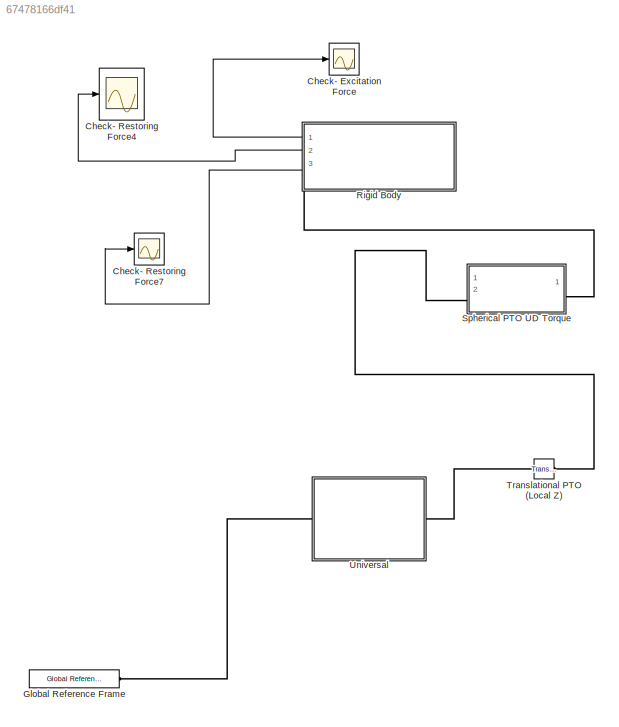
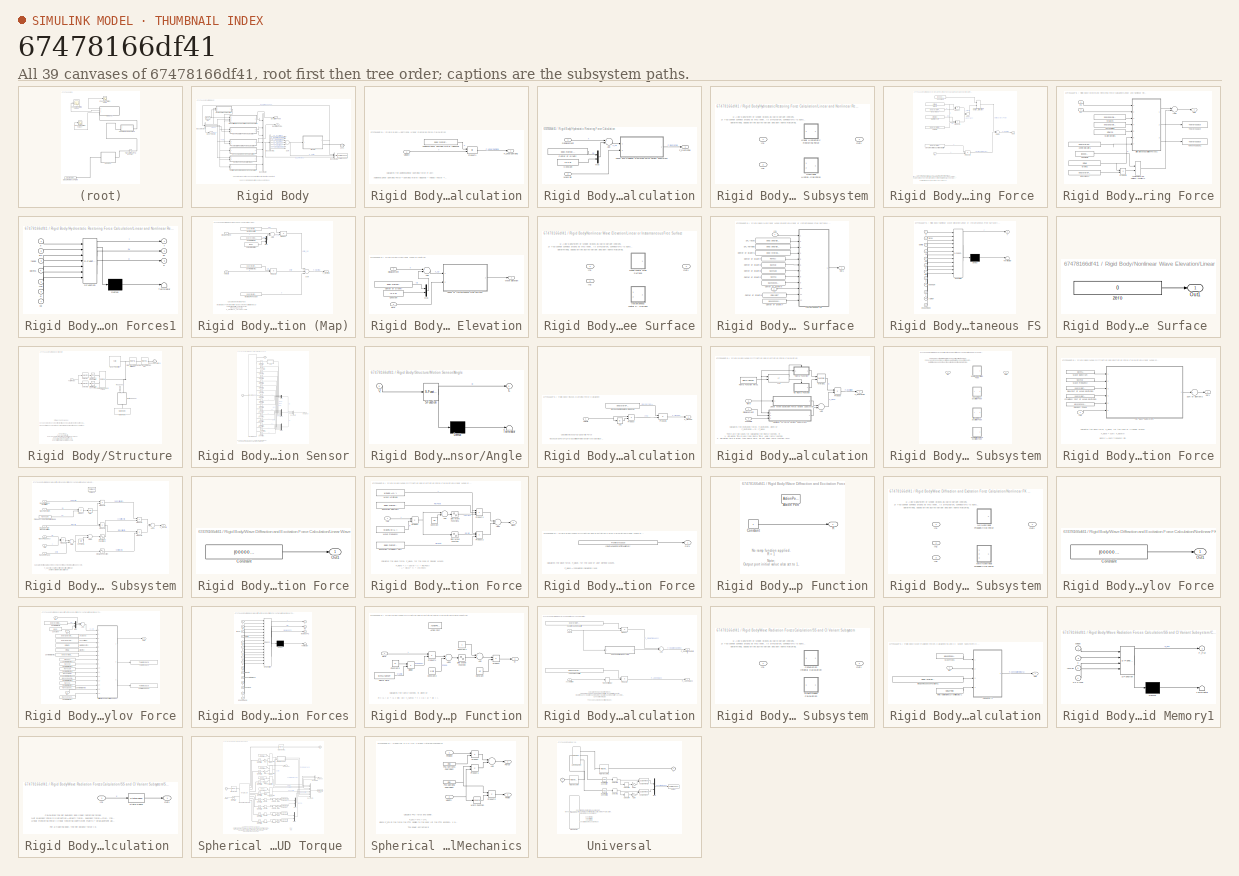
[diagram: thumbnail index - all 39 canvases of the model, root first then tree order]
MODEL slx_67478166df41
KIND model
CONFIG AbsTol = auto
CONFIG FixedStep = 0.1
CONFIG MaxStep = auto
CONFIG MinStep = auto
CONFIG RelTol = 1e-3
CONFIG SampleTimeConstraint = Unconstrained
CONFIG Solver = ode4
CONFIG SolverMode = Auto
CONFIG SolverName = ode4
CONFIG StartTime = 0
CONFIG StopTime = 60
BLOCK [Scope] Check- Excitation Force
  Ports = [1]
  ScopeSpecificationString = C++SS(StrPVP('SaveName','ScopeData1'),StrPVP('SaveName','ScopeData4'),StrPVP('LimitDataPoints','on'),StrPVP('DataFormat','Array'),StrPVP('Decimation','1'),StrPVP('BlockParamSampleInput','off'))
BLOCK [Scope] Check- Restoring Force4
  Ports = [1]
  ScopeSpecificationString = Simulink.scopes.TimeScopeBlockCfg('CurrentConfiguration', extmgr.ConfigurationSet(extmgr.Configuration('Core','General UI',true),extmgr.Configuration('Core','Source UI',true),extmgr.Configuration('Sources','WiredSimulink',true,'DataLoggingVariableName','ScopeData14','DataLoggingLimitDataPoints',true,'DataLoggingSaveFormat','Array','DataLoggingDecimation','1','DataLoggingDecimateData',true),extmgr....<+1568ch>
BLOCK [Scope] Check- Restoring Force7
  Ports = [1]
  ScopeSpecificationString = Simulink.scopes.TimeScopeBlockCfg('CurrentConfiguration', extmgr.ConfigurationSet(extmgr.Configuration('Core','General UI',true),extmgr.Configuration('Core','Source UI',true),extmgr.Configuration('Sources','WiredSimulink',true,'DataLoggingVariableName','ScopeData2','DataLoggingLimitDataPoints',true,'DataLoggingSaveFormat','Array','DataLoggingDecimation','1','DataLoggingDecimateData',true),extmgr.C...<+1557ch>
BLOCK [Reference] Global Reference Frame  REF=WECSim_Lib/Frames/Global Reference Frame
  Ports = [0, 0, 0, 0, 0, 0, 1]
  SourceBlock = WECSim_Lib/Frames/Global Reference Frame
  SourceType = Frames
BLOCK [SubSystem] Rigid Body
  AncestorBlock = WECSim_Lib/Body Elements/Rigid Body
  AttributesFormatString = %<body>
  Ports = [0, 3, 0, 0, 0, 0, 1]
  RequestExecContextInheritance = off
  Variant = off
BLOCK [SubSystem] Rigid Body/Additional Linear Damping Force Calculation
  Ports = [1, 1]
  RequestExecContextInheritance = off
  Variant = off
BLOCK [Constant] Rigid Body/Additional Linear Damping Force Calculation/Additional Linear Damping Matrix (diagonal)
  Value = body.hydroForce.linearDamping
BLOCK [Outport] Rigid Body/Additional Linear Damping Force Calculation/F_LinearDamping
  IconDisplay = Port number
BLOCK [Product] Rigid Body/Additional Linear Damping Force Calculation/Product1
  InputSameDT = off
  Multiplication = Matrix(*)
  OutDataTypeStr = Inherit: Inherit via internal rule
  Ports = [2, 1]
  RndMeth = Floor
  SaturateOnIntegerOverflow = off
BLOCK [Inport] Rigid Body/Additional Linear Damping Force Calculation/Velocity
  IconDisplay = Port number
BLOCK [Outport] Rigid Body/Body Velocity
  IconDisplay = Port number
  Port = 3
BLOCK [BusCreator] Rigid Body/Bus Creator
  DisplayOption = bar
  InheritFromInputs = on
  Inputs = 7
  Ports = [7, 1]
BLOCK [BusCreator] Rigid Body/Bus Creator1
  DisplayOption = bar
  InheritFromInputs = on
  Inputs = 3
  Ports = [3, 1]
BLOCK [BusSelector] Rigid Body/Bus Selector
  OutputSignals = disp,vel,acc
  Ports = [1, 3]
BLOCK [BusSelector] Rigid Body/Bus Selector1
  OutputSignals = F_Excitation,F_RadiationDamping,F_AddedMass,F_Restoring,F_Viscous,F_Mooring,F_LinearDamping
  Ports = [1, 7]
BLOCK [PMIOPort] Rigid Body/Conn
  Port = 1
  Side = Right
BLOCK [Outport] Rigid Body/Excitation Force
  IconDisplay = Port number
BLOCK [SubSystem] Rigid Body/Hydrostatic Restoring Force Calculation
  Ports = [2, 1]
  RequestExecContextInheritance = off
  Variant = off
BLOCK [Sum] Rigid Body/Hydrostatic Restoring Force Calculation/Add
  InputSameDT = off
  Inputs = +-
  OutDataTypeStr = Inherit: Inherit via internal rule
  Ports = [2, 1]
  SaturateOnIntegerOverflow = off
BLOCK [Constant] Rigid Body/Hydrostatic Restoring Force Calculation/Center of Gravity
  Value = body.hydroData.properties.cg
BLOCK [Constant] Rigid Body/Hydrostatic Restoring Force Calculation/Constant
  Value = [0 0 0]
BLOCK [Inport] Rigid Body/Hydrostatic Restoring Force Calculation/Displacement
  IconDisplay = Port number
BLOCK [Outport] Rigid Body/Hydrostatic Restoring Force Calculation/F_Restoring
  IconDisplay = Port number
BLOCK [SubSystem] Rigid Body/Hydrostatic Restoring Force Calculation/Linear and Nonlinear Restoring Force Variant Subsystem
  Ports = [2, 1]
  RequestExecContextInheritance = off
  Variant = on
BLOCK [Inport] Rigid Body/Hydrostatic Restoring Force Calculation/Linear and Nonlinear Restoring Force Variant Subsystem/In1
  IconDisplay = Port number
BLOCK [Inport] Rigid Body/Hydrostatic Restoring Force Calculation/Linear and Nonlinear Restoring Force Variant Subsystem/In2
  IconDisplay = Port number
  Port = 2
BLOCK [SubSystem] Rigid Body/Hydrostatic Restoring Force Calculation/Linear and Nonlinear Restoring Force Variant Subsystem/Linear Hydrostatic Restoring Force 
  Ports = [1, 1]
  RequestExecContextInheritance = off
  Variant = off
  VariantControl = sv_linearHydro
BLOCK [Sum] Rigid Body/Hydrostatic Restoring Force Calculation/Linear and Nonlinear Restoring Force Variant Subsystem/Linear Hydrostatic Restoring Force /Add1
  InputSameDT = off
  Inputs = +-
  OutDataTypeStr = Inherit: Inherit via internal rule
  Ports = [2, 1]
  SaturateOnIntegerOverflow = off
BLOCK [Sum] Rigid Body/Hydrostatic Restoring Force Calculation/Linear and Nonlinear Restoring Force Variant Subsystem/Linear Hydrostatic Restoring Force /Add2
  InputSameDT = off
  OutDataTypeStr = Inherit: Inherit via internal rule
  Ports = [2, 1]
  SaturateOnIntegerOverflow = off
BLOCK [Assignment] Rigid Body/Hydrostatic Restoring Force Calculation/Linear and Nonlinear Restoring Force Variant Subsystem/Linear Hydrostatic Restoring Force /Assignment (Add Net Bouyancy Force to Z-Direction)
  IndexOptions = Index vector (dialog)
  Indices = 3
  OutputSizes = 1
  Ports = [2, 1]
BLOCK [Constant] Rigid Body/Hydrostatic Restoring Force Calculation/Linear and Nonlinear Restoring Force Variant Subsystem/Linear Hydrostatic Restoring Force /Body Mass
  Value = body.hydroForce.storage.mass
BLOCK [Constant] Rigid Body/Hydrostatic Restoring Force Calculation/Linear and Nonlinear Restoring Force Variant Subsystem/Linear Hydrostatic Restoring Force /Constant1
  Value = [0 0 0 0 0 0]
BLOCK [Constant] Rigid Body/Hydrostatic Restoring Force Calculation/Linear and Nonlinear Restoring Force Variant Subsystem/Linear Hydrostatic Restoring Force /Gravity
  Value = simu.g
BLOCK [Inport] Rigid Body/Hydrostatic Restoring Force Calculation/Linear and Nonlinear Restoring Force Variant Subsystem/Linear Hydrostatic Restoring Force /In1
  IconDisplay = Port number
BLOCK [Constant] Rigid Body/Hydrostatic Restoring Force Calculation/Linear and Nonlinear Restoring Force Variant Subsystem/Linear Hydrostatic Restoring Force /Linear Restioring Coefficient Matrix
  Value = body.hydroForce.linearHydroRestCoef
BLOCK [Outport] Rigid Body/Hydrostatic Restoring Force Calculation/Linear and Nonlinear Restoring Force Variant Subsystem/Linear Hydrostatic Restoring Force /Out1
  IconDisplay = Port number
BLOCK [Product] Rigid Body/Hydrostatic Restoring Force Calculation/Linear and Nonlinear Restoring Force Variant Subsystem/Linear Hydrostatic Restoring Force /Product
  InputSameDT = off
  OutDataTypeStr = Inherit: Inherit via internal rule
  Ports = [2, 1]
  RndMeth = Floor
  SaturateOnIntegerOverflow = off
BLOCK [Product] Rigid Body/Hydrostatic Restoring Force Calculation/Linear and Nonlinear Restoring Force Variant Subsystem/Linear Hydrostatic Restoring Force /Product1
  InputSameDT = off
  Inputs = 3
  OutDataTypeStr = Inherit: Inherit via internal rule
  Ports = [3, 1]
  RndMeth = Floor
  SaturateOnIntegerOverflow = off
BLOCK [Product] Rigid Body/Hydrostatic Restoring Force Calculation/Linear and Nonlinear Restoring Force Variant Subsystem/Linear Hydrostatic Restoring Force /Product2
  InputSameDT = off
  Multiplication = Matrix(*)
  OutDataTypeStr = Inherit: Inherit via internal rule
  Ports = [2, 1]
  RndMeth = Floor
  SaturateOnIntegerOverflow = off
BLOCK [Constant] Rigid Body/Hydrostatic Restoring Force Calculation/Linear and Nonlinear Restoring Force Variant Subsystem/Linear Hydrostatic Restoring Force /Volume
  Value = body.hydroData.properties.disp_vol
BLOCK [Constant] Rigid Body/Hydrostatic Restoring Force Calculation/Linear and Nonlinear Restoring Force Variant Subsystem/Linear Hydrostatic Restoring Force /Water Density
  Value = simu.rho
BLOCK [SubSystem] Rigid Body/Hydrostatic Restoring Force Calculation/Linear and Nonlinear Restoring Force Variant Subsystem/Nonlinear Hydrostatic Restoring Force
  Ports = [2, 1]
  RequestExecContextInheritance = off
  Variant = off
  VariantControl = sv_nonlinearHydro
BLOCK [Sum] Rigid Body/Hydrostatic Restoring Force Calculation/Linear and Nonlinear Restoring Force Variant Subsystem/Nonlinear Hydrostatic Restoring Force/Add3
  InputSameDT = off
  Inputs = -+
  OutDataTypeStr = Inherit: Inherit via internal rule
  Ports = [2, 1]
  SaturateOnIntegerOverflow = off
BLOCK [Assignment] Rigid Body/Hydrostatic Restoring Force Calculation/Linear and Nonlinear Restoring Force Variant Subsystem/Nonlinear Hydrostatic Restoring Force/Assignment (Add Net Bouyancy Force to Z-Direction)2
  IndexOptions = Index vector (dialog)
  Indices = 3
  OutputSizes = 1
  Ports = [2, 1]
BLOCK [Constant] Rigid Body/Hydrostatic Restoring Force Calculation/Linear and Nonlinear Restoring Force Variant Subsystem/Nonlinear Hydrostatic Restoring Force/Body Mass1
  Value = body.hydroForce.storage.mass
BLOCK [Constant] Rigid Body/Hydrostatic Restoring Force Calculation/Linear and Nonlinear Restoring Force Variant Subsystem/Nonlinear Hydrostatic Restoring Force/Center of Gravity1
  Value = body.hydroData.properties.cg
BLOCK [Constant] Rigid Body/Hydrostatic Restoring Force Calculation/Linear and Nonlinear Restoring Force Variant Subsystem/Nonlinear Hydrostatic Restoring Force/Constant2
  Value = [0 0 0 0 0 0]
BLOCK [SubSystem] Rigid Body/Hydrostatic Restoring Force Calculation/Linear and Nonlinear Restoring Force Variant Subsystem/Nonlinear Hydrostatic Restoring Force/Diffarction and Excitation Forces1
  ErrorFcn = Stateflow.Translate.translate
  PermitHierarchicalResolution = ExplicitOnly
  Ports = [7, 3]
  RequestExecContextInheritance = off
  SFBlockType = MATLAB Function
  TreatAsAtomicUnit = on
  Variant = off
BLOCK [Demux] Rigid Body/Hydrostatic Restoring Force Calculation/Linear and Nonlinear Restoring Force Variant Subsystem/Nonlinear Hydrostatic Restoring Force/Diffarction and Excitation Forces1/ Demux 
  Outputs = 1
  Ports = [1, 1]
BLOCK [S-Function] Rigid Body/Hydrostatic Restoring Force Calculation/Linear and Nonlinear Restoring Force Variant Subsystem/Nonlinear Hydrostatic Restoring Force/Diffarction and Excitation Forces1/ SFunction 
  EnableBusSupport = on
  FunctionName = sf_sfun
  PortCounts = [7 4]
  Ports = [7, 4]
  SFunctionDeploymentMode = off
  Tag = Stateflow S-Function ah_6dof_rev2 4
BLOCK [Terminator] Rigid Body/Hydrostatic Restoring Force Calculation/Linear and Nonlinear Restoring Force Variant Subsystem/Nonlinear Hydrostatic Restoring Force/Diffarction and Excitation Forces1/ Terminator 
BLOCK [Outport] Rigid Body/Hydrostatic Restoring Force Calculation/Linear and Nonlinear Restoring Force Variant Subsystem/Nonlinear Hydrostatic Restoring Force/Diffarction and Excitation Forces1/av
  IconDisplay = Port number
  Port = 2
BLOCK [Inport] Rigid Body/Hydrostatic Restoring Force Calculation/Linear and Nonlinear Restoring Force Variant Subsystem/Nonlinear Hydrostatic Restoring Force/Diffarction and Excitation Forces1/cg
  IconDisplay = Port number
  Port = 7
BLOCK [Inport] Rigid Body/Hydrostatic Restoring Force Calculation/Linear and Nonlinear Restoring Force Variant Subsystem/Nonlinear Hydrostatic Restoring Force/Diffarction and Excitation Forces1/elv
  IconDisplay = Port number
  Port = 2
BLOCK [Outport] Rigid Body/Hydrostatic Restoring Force Calculation/Linear and Nonlinear Restoring Force Variant Subsystem/Nonlinear Hydrostatic Restoring Force/Diffarction and Excitation Forces1/f
  IconDisplay = Port number
BLOCK [Inport] Rigid Body/Hydrostatic Restoring Force Calculation/Linear and Nonlinear Restoring Force Variant Subsystem/Nonlinear Hydrostatic Restoring Force/Diffarction and Excitation Forces1/faces
  IconDisplay = Port number
  Port = 3
BLOCK [Inport] Rigid Body/Hydrostatic Restoring Force Calculation/Linear and Nonlinear Restoring Force Variant Subsystem/Nonlinear Hydrostatic Restoring Force/Diffarction and Excitation Forces1/g
  IconDisplay = Port number
  Port = 6
BLOCK [Outport] Rigid Body/Hydrostatic Restoring Force Calculation/Linear and Nonlinear Restoring Force Variant Subsystem/Nonlinear Hydrostatic Restoring Force/Diffarction and Excitation Forces1/p
  IconDisplay = Port number
  Port = 3
BLOCK [Inport] Rigid Body/Hydrostatic Restoring Force Calculation/Linear and Nonlinear Restoring Force Variant Subsystem/Nonlinear Hydrostatic Restoring Force/Diffarction and Excitation Forces1/points
  IconDisplay = Port number
  Port = 4
BLOCK [Inport] Rigid Body/Hydrostatic Restoring Force Calculation/Linear and Nonlinear Restoring Force Variant Subsystem/Nonlinear Hydrostatic Restoring Force/Diffarction and Excitation Forces1/rho
  IconDisplay = Port number
  Port = 5
BLOCK [Inport] Rigid Body/Hydrostatic Restoring Force Calculation/Linear and Nonlinear Restoring Force Variant Subsystem/Nonlinear Hydrostatic Restoring Force/Diffarction and Excitation Forces1/x
  IconDisplay = Port number
BLOCK [Constant] Rigid Body/Hydrostatic Restoring Force Calculation/Linear and Nonlinear Restoring Force Variant Subsystem/Nonlinear Hydrostatic Restoring Force/Gravity2
  Value = simu.g
BLOCK [Inport] Rigid Body/Hydrostatic Restoring Force Calculation/Linear and Nonlinear Restoring Force Variant Subsystem/Nonlinear Hydrostatic Restoring Force/In1
  IconDisplay = Port number
BLOCK [Inport] Rigid Body/Hydrostatic Restoring Force Calculation/Linear and Nonlinear Restoring Force Variant Subsystem/Nonlinear Hydrostatic Restoring Force/In2
  IconDisplay = Port number
  Port = 2
BLOCK [Outport] Rigid Body/Hydrostatic Restoring Force Calculation/Linear and Nonlinear Restoring Force Variant Subsystem/Nonlinear Hydrostatic Restoring Force/Out1
  IconDisplay = Port number
BLOCK [Product] Rigid Body/Hydrostatic Restoring Force Calculation/Linear and Nonlinear Restoring Force Variant Subsystem/Nonlinear Hydrostatic Restoring Force/Product3
  InputSameDT = off
  OutDataTypeStr = Inherit: Inherit via internal rule
  Ports = [2, 1]
  RndMeth = Floor
  SaturateOnIntegerOverflow = off
BLOCK [Constant] Rigid Body/Hydrostatic Restoring Force Calculation/Linear and Nonlinear Restoring Force Variant Subsystem/Nonlinear Hydrostatic Restoring Force/STL faces
  Value = body.bodyGeometry.face
BLOCK [Constant] Rigid Body/Hydrostatic Restoring Force Calculation/Linear and Nonlinear Restoring Force Variant Subsystem/Nonlinear Hydrostatic Restoring Force/STL verticies
  Value = body.bodyGeometry.vertex
BLOCK [ToWorkspace] Rigid Body/Hydrostatic Restoring Force Calculation/Linear and Nonlinear Restoring Force Variant Subsystem/Nonlinear Hydrostatic Restoring Force/To Workspace
  Decimation = round(simu.dtOut/simu.dt,0)
  MaxDataPoints = inf
  Ports = [1]
  SampleTime = -1
  SaveFormat = Structure With Time
  VariableName = body1_areas_out
BLOCK [ToWorkspace] Rigid Body/Hydrostatic Restoring Force Calculation/Linear and Nonlinear Restoring Force Variant Subsystem/Nonlinear Hydrostatic Restoring Force/To Workspace1
  Decimation = round(simu.dtOut/simu.dt,0)
  MaxDataPoints = inf
  Ports = [1]
  SampleTime = -1
  SaveFormat = Structure With Time
  VariableName = body1_hspressure_out
BLOCK [Constant] Rigid Body/Hydrostatic Restoring Force Calculation/Linear and Nonlinear Restoring Force Variant Subsystem/Nonlinear Hydrostatic Restoring Force/Water Density1
  Value = simu.rho
BLOCK [Outport] Rigid Body/Hydrostatic Restoring Force Calculation/Linear and Nonlinear Restoring Force Variant Subsystem/Out1
  IconDisplay = Port number
BLOCK [Mux] Rigid Body/Hydrostatic Restoring Force Calculation/Mux
  DisplayOption = bar
  Inputs = 2
  Ports = [2, 1]
BLOCK [Inport] Rigid Body/Hydrostatic Restoring Force Calculation/Wave Elv
  IconDisplay = Port number
  Port = 2
BLOCK [SubSystem] Rigid Body/Mooring Force Calculation (Map)
  Ports = [2, 1]
  RequestExecContextInheritance = off
  Variant = off
BLOCK [Constant] Rigid Body/Mooring Force Calculation (Map)/0 Disp for Rotation
  Value = [0 0 0]
BLOCK [Sum] Rigid Body/Mooring Force Calculation (Map)/Add
  InputSameDT = off
  Inputs = +-
  OutDataTypeStr = Inherit: Inherit via internal rule
  Ports = [2, 1]
  SaturateOnIntegerOverflow = off
BLOCK [Constant] Rigid Body/Mooring Force Calculation (Map)/Center of Gravity
  Value = body.hydroData.properties.cg
BLOCK [Constant] Rigid Body/Mooring Force Calculation (Map)/Center of Gravity2
  Value = body.mooring.c
BLOCK [Inport] Rigid Body/Mooring Force Calculation (Map)/Displacement
  IconDisplay = Port number
BLOCK [Outport] Rigid Body/Mooring Force Calculation (Map)/F_Mooring
  IconDisplay = Port number
BLOCK [Constant] Rigid Body/Mooring Force Calculation (Map)/Mooring K Matrix
  Value = body.mooring.k
BLOCK [Constant] Rigid Body/Mooring Force Calculation (Map)/Mooring Pre-Tension
  Value = body.mooring.preTension
BLOCK [Mux] Rigid Body/Mooring Force Calculation (Map)/Mux
  DisplayOption = bar
  Inputs = 2
  Ports = [2, 1]
BLOCK [Product] Rigid Body/Mooring Force Calculation (Map)/Product
  InputSameDT = off
  Multiplication = Matrix(*)
  OutDataTypeStr = Inherit: Inherit via internal rule
  Ports = [2, 1]
  RndMeth = Floor
  SaturateOnIntegerOverflow = off
BLOCK [Product] Rigid Body/Mooring Force Calculation (Map)/Product1
  InputSameDT = off
  Multiplication = Matrix(*)
  OutDataTypeStr = Inherit: Inherit via internal rule
  Ports = [2, 1]
  RndMeth = Floor
  SaturateOnIntegerOverflow = off
BLOCK [Inport] Rigid Body/Mooring Force Calculation (Map)/Velocity
  IconDisplay = Port number
  Port = 2
BLOCK [Sum] Rigid Body/Mooring Force Calculation (Map)/sum
  InputSameDT = off
  Inputs = ++-
  OutDataTypeStr = Inherit: Inherit via internal rule
  Ports = [3, 1]
  SaturateOnIntegerOverflow = off
BLOCK [SubSystem] Rigid Body/Nonlinear Wave Elevation
  Ports = [2, 1]
  RequestExecContextInheritance = off
  Variant = off
BLOCK [Sum] Rigid Body/Nonlinear Wave Elevation/Add
  InputSameDT = off
  Inputs = +-
  OutDataTypeStr = Inherit: Inherit via internal rule
  Ports = [2, 1]
  SaturateOnIntegerOverflow = off
BLOCK [Constant] Rigid Body/Nonlinear Wave Elevation/Center of Gravity
  Value = body.hydroData.properties.cg
BLOCK [Constant] Rigid Body/Nonlinear Wave Elevation/Constant
  Value = [0 0 0]
BLOCK [Inport] Rigid Body/Nonlinear Wave Elevation/Displacement
  IconDisplay = Port number
BLOCK [SubSystem] Rigid Body/Nonlinear Wave Elevation/Linear or Instantaneous Free Surface
  Ports = [2, 1]
  RequestExecContextInheritance = off
  Variant = on
BLOCK [Inport] Rigid Body/Nonlinear Wave Elevation/Linear or Instantaneous Free Surface/In1
  IconDisplay = Port number
BLOCK [Inport] Rigid Body/Nonlinear Wave Elevation/Linear or Instantaneous Free Surface/In2
  IconDisplay = Port number
  Port = 2
BLOCK [SubSystem] Rigid Body/Nonlinear Wave Elevation/Linear or Instantaneous Free Surface/Instantaneous Water Free Surface  
  Ports = [2, 1]
  RequestExecContextInheritance = off
  Variant = off
  VariantControl = sv_instFS
BLOCK [Constant] Rigid Body/Nonlinear Wave Elevation/Linear or Instantaneous Free Surface/Instantaneous Water Free Surface  /Center of Gravity1
  Value = body.hydroData.properties.cg
BLOCK [Constant] Rigid Body/Nonlinear Wave Elevation/Linear or Instantaneous Free Surface/Instantaneous Water Free Surface  /Center of Gravity2
  Value = waves.k
BLOCK [Constant] Rigid Body/Nonlinear Wave Elevation/Linear or Instantaneous Free Surface/Instantaneous Water Free Surface  /Center of Gravity3
  Value = waves.w
BLOCK [Constant] Rigid Body/Nonlinear Wave Elevation/Linear or Instantaneous Free Surface/Instantaneous Water Free Surface  /Center of Gravity4
  Value = waves.A
BLOCK [Constant] Rigid Body/Nonlinear Wave Elevation/Linear or Instantaneous Free Surface/Instantaneous Water Free Surface  /Center of Gravity5
  Value = waves.typeNum
BLOCK [Constant] Rigid Body/Nonlinear Wave Elevation/Linear or Instantaneous Free Surface/Instantaneous Water Free Surface  /Center of Gravity6
  Value = simu.rampT
BLOCK [Constant] Rigid Body/Nonlinear Wave Elevation/Linear or Instantaneous Free Surface/Instantaneous Water Free Surface  /Center of Gravity7
  Value = waves.phaseRand
BLOCK [Constant] Rigid Body/Nonlinear Wave Elevation/Linear or Instantaneous Free Surface/Instantaneous Water Free Surface  /Center of Gravity8
  Value = waves.dw
BLOCK [Inport] Rigid Body/Nonlinear Wave Elevation/Linear or Instantaneous Free Surface/Instantaneous Water Free Surface  /In1
  IconDisplay = Port number
BLOCK [Inport] Rigid Body/Nonlinear Wave Elevation/Linear or Instantaneous Free Surface/Instantaneous Water Free Surface  /In2
  IconDisplay = Port number
  Port = 2
BLOCK [SubSystem] Rigid Body/Nonlinear Wave Elevation/Linear or Instantaneous Free Surface/Instantaneous Water Free Surface  /Instantaneous FS
  ErrorFcn = Stateflow.Translate.translate
  PermitHierarchicalResolution = ExplicitOnly
  Ports = [12, 1]
  RequestExecContextInheritance = off
  SFBlockType = MATLAB Function
  TreatAsAtomicUnit = on
  Variant = off
BLOCK [Demux] Rigid Body/Nonlinear Wave Elevation/Linear or Instantaneous Free Surface/Instantaneous Water Free Surface  /Instantaneous FS/ Demux 
  Outputs = 1
  Ports = [1, 1]
BLOCK [S-Function] Rigid Body/Nonlinear Wave Elevation/Linear or Instantaneous Free Surface/Instantaneous Water Free Surface  /Instantaneous FS/ SFunction 
  EnableBusSupport = on
  FunctionName = sf_sfun
  PortCounts = [12 2]
  Ports = [12, 2]
  SFunctionDeploymentMode = off
  Tag = Stateflow S-Function ah_6dof_rev2 3
BLOCK [Terminator] Rigid Body/Nonlinear Wave Elevation/Linear or Instantaneous Free Surface/Instantaneous Water Free Surface  /Instantaneous FS/ Terminator 
BLOCK [Inport] Rigid Body/Nonlinear Wave Elevation/Linear or Instantaneous Free Surface/Instantaneous Water Free Surface  /Instantaneous FS/AH
  IconDisplay = Port number
  Port = 5
BLOCK [Inport] Rigid Body/Nonlinear Wave Elevation/Linear or Instantaneous Free Surface/Instantaneous Water Free Surface  /Instantaneous FS/cg
  IconDisplay = Port number
  Port = 4
BLOCK [Inport] Rigid Body/Nonlinear Wave Elevation/Linear or Instantaneous Free Surface/Instantaneous Water Free Surface  /Instantaneous FS/dw
  IconDisplay = Port number
  Port = 7
BLOCK [Outport] Rigid Body/Nonlinear Wave Elevation/Linear or Instantaneous Free Surface/Instantaneous Water Free Surface  /Instantaneous FS/f
  IconDisplay = Port number
BLOCK [Inport] Rigid Body/Nonlinear Wave Elevation/Linear or Instantaneous Free Surface/Instantaneous Water Free Surface  /Instantaneous FS/faces
  IconDisplay = Port number
  Port = 2
BLOCK [Inport] Rigid Body/Nonlinear Wave Elevation/Linear or Instantaneous Free Surface/Instantaneous Water Free Surface  /Instantaneous FS/k
  IconDisplay = Port number
  Port = 8
BLOCK [Inport] Rigid Body/Nonlinear Wave Elevation/Linear or Instantaneous Free Surface/Instantaneous Water Free Surface  /Instantaneous FS/phaseRand
  IconDisplay = Port number
  Port = 12
BLOCK [Inport] Rigid Body/Nonlinear Wave Elevation/Linear or Instantaneous Free Surface/Instantaneous Water Free Surface  /Instantaneous FS/points
  IconDisplay = Port number
  Port = 3
BLOCK [Inport] Rigid Body/Nonlinear Wave Elevation/Linear or Instantaneous Free Surface/Instantaneous Water Free Surface  /Instantaneous FS/rampT
  IconDisplay = Port number
  Port = 11
BLOCK [Inport] Rigid Body/Nonlinear Wave Elevation/Linear or Instantaneous Free Surface/Instantaneous Water Free Surface  /Instantaneous FS/t
  IconDisplay = Port number
  Port = 10
BLOCK [Inport] Rigid Body/Nonlinear Wave Elevation/Linear or Instantaneous Free Surface/Instantaneous Water Free Surface  /Instantaneous FS/typeNum
  IconDisplay = Port number
  Port = 9
BLOCK [Inport] Rigid Body/Nonlinear Wave Elevation/Linear or Instantaneous Free Surface/Instantaneous Water Free Surface  /Instantaneous FS/w
  IconDisplay = Port number
  Port = 6
BLOCK [Inport] Rigid Body/Nonlinear Wave Elevation/Linear or Instantaneous Free Surface/Instantaneous Water Free Surface  /Instantaneous FS/x
  IconDisplay = Port number
BLOCK [Outport] Rigid Body/Nonlinear Wave Elevation/Linear or Instantaneous Free Surface/Instantaneous Water Free Surface  /Out1
  IconDisplay = Port number
BLOCK [Constant] Rigid Body/Nonlinear Wave Elevation/Linear or Instantaneous Free Surface/Instantaneous Water Free Surface  /STL faces
  Value = body.bodyGeometry.face
BLOCK [Constant] Rigid Body/Nonlinear Wave Elevation/Linear or Instantaneous Free Surface/Instantaneous Water Free Surface  /STL verticies
  Value = body.bodyGeometry.vertex
BLOCK [SubSystem] Rigid Body/Nonlinear Wave Elevation/Linear or Instantaneous Free Surface/Mean Water Free Surface 
  Ports = [0, 1]
  RequestExecContextInheritance = off
  Variant = off
  VariantControl = sv_meanFS
BLOCK [Outport] Rigid Body/Nonlinear Wave Elevation/Linear or Instantaneous Free Surface/Mean Water Free Surface /Out1
  IconDisplay = Port number
BLOCK [Constant] Rigid Body/Nonlinear Wave Elevation/Linear or Instantaneous Free Surface/Mean Water Free Surface /zero
  Value = 0
BLOCK [Outport] Rigid Body/Nonlinear Wave Elevation/Linear or Instantaneous Free Surface/Out1
  IconDisplay = Port number
BLOCK [Mux] Rigid Body/Nonlinear Wave Elevation/Mux
  DisplayOption = bar
  Inputs = 2
  Ports = [2, 1]
BLOCK [Inport] Rigid Body/Nonlinear Wave Elevation/Time
  IconDisplay = Port number
  Port = 2
BLOCK [Outport] Rigid Body/Nonlinear Wave Elevation/Wave Elevation
  IconDisplay = Port number
BLOCK [Outport] Rigid Body/Restoring Force 
  IconDisplay = Port number
  Port = 2
BLOCK [SubSystem] Rigid Body/Structure
  Ports = [1, 1, 0, 0, 0, 0, 1]
  RequestExecContextInheritance = off
  Variant = off
BLOCK [Reference] Rigid Body/Structure/Body Properties  REF=sm_lib/Body Elements/Solid
  Ports = [0, 0, 0, 0, 0, 0, 1]
  SourceBlock = sm_lib/Body Elements/Solid
  SourceType = Solid
BLOCK [PMIOPort] Rigid Body/Structure/Conn Free Surface
  Port = 1
  Side = Right
BLOCK [Reference] Rigid Body/Structure/External Force and Torque  REF=sm_lib/Forces and
Torques/External Force
and Torque
  Ports = [0, 0, 0, 0, 0, 2, 1]
  SourceBlock = sm_lib/Forces and\nTorques/External Force\nand Torque
  SourceType = External Force\nand Torque
BLOCK [SubSystem] Rigid Body/Structure/Motion Sensor
  Ports = [0, 1, 0, 0, 0, 1, 1]
  RequestExecContextInheritance = off
  Variant = off
BLOCK [SubSystem] Rigid Body/Structure/Motion Sensor/Angle
  ErrorFcn = Stateflow.Translate.translate
  PermitHierarchicalResolution = ExplicitOnly
  Ports = [1, 1]
  RequestExecContextInheritance = off
  SFBlockType = MATLAB Function
  TreatAsAtomicUnit = on
  Variant = off
BLOCK [Demux] Rigid Body/Structure/Motion Sensor/Angle/ Demux 
  Outputs = 1
  Ports = [1, 1]
BLOCK [S-Function] Rigid Body/Structure/Motion Sensor/Angle/ SFunction 
  EnableBusSupport = on
  FunctionName = sf_sfun
  PortCounts = [1 2]
  Ports = [1, 2]
  SFunctionDeploymentMode = off
  Tag = Stateflow S-Function ah_6dof_rev2 8
BLOCK [Terminator] Rigid Body/Structure/Motion Sensor/Angle/ Terminator 
BLOCK [Outport] Rigid Body/Structure/Motion Sensor/Angle/E
  IconDisplay = Port number
BLOCK [Inport] Rigid Body/Structure/Motion Sensor/Angle/Q
  IconDisplay = Port number
BLOCK [PMIOPort] Rigid Body/Structure/Motion Sensor/B
  Port = 2
  Side = Left
BLOCK [BusCreator] Rigid Body/Structure/Motion Sensor/Bus Creator
  DisplayOption = bar
  InheritFromInputs = on
  Inputs = 3
  Ports = [3, 1]
BLOCK [PMIOPort] Rigid Body/Structure/Motion Sensor/F
  Port = 1
  Side = Right
BLOCK [Mux] Rigid Body/Structure/Motion Sensor/Mux
  DisplayOption = bar
  Ports = [4, 1]
BLOCK [Mux] Rigid Body/Structure/Motion Sensor/Mux1
  DisplayOption = bar
  Inputs = 6
  Ports = [6, 1]
BLOCK [Mux] Rigid Body/Structure/Motion Sensor/Mux2
  DisplayOption = bar
  Inputs = 6
  Ports = [6, 1]
BLOCK [Reference] Rigid Body/Structure/Motion Sensor/PS-Simulink Converter  REF=nesl_utility/PS-Simulink
Converter
  Ports = [0, 1, 0, 0, 0, 1]
  SourceBlock = nesl_utility/PS-Simulink\nConverter
  SourceType = PS-Simulink\nConverter
BLOCK [Reference] Rigid Body/Structure/Motion Sensor/PS-Simulink Converter1  REF=nesl_utility/PS-Simulink
Converter
  Ports = [0, 1, 0, 0, 0, 1]
  SourceBlock = nesl_utility/PS-Simulink\nConverter
  SourceType = PS-Simulink\nConverter
BLOCK [Reference] Rigid Body/Structure/Motion Sensor/PS-Simulink Converter10  REF=nesl_utility/PS-Simulink
Converter
  Ports = [0, 1, 0, 0, 0, 1]
  SourceBlock = nesl_utility/PS-Simulink\nConverter
  SourceType = PS-Simulink\nConverter
BLOCK [Reference] Rigid Body/Structure/Motion Sensor/PS-Simulink Converter11  REF=nesl_utility/PS-Simulink
Converter
  Ports = [0, 1, 0, 0, 0, 1]
  SourceBlock = nesl_utility/PS-Simulink\nConverter
  SourceType = PS-Simulink\nConverter
BLOCK [Reference] Rigid Body/Structure/Motion Sensor/PS-Simulink Converter12  REF=nesl_utility/PS-Simulink
Converter
  Ports = [0, 1, 0, 0, 0, 1]
  SourceBlock = nesl_utility/PS-Simulink\nConverter
  SourceType = PS-Simulink\nConverter
BLOCK [Reference] Rigid Body/Structure/Motion Sensor/PS-Simulink Converter13  REF=nesl_utility/PS-Simulink
Converter
  Ports = [0, 1, 0, 0, 0, 1]
  SourceBlock = nesl_utility/PS-Simulink\nConverter
  SourceType = PS-Simulink\nConverter
BLOCK [Reference] Rigid Body/Structure/Motion Sensor/PS-Simulink Converter14  REF=nesl_utility/PS-Simulink
Converter
  Ports = [0, 1, 0, 0, 0, 1]
  SourceBlock = nesl_utility/PS-Simulink\nConverter
  SourceType = PS-Simulink\nConverter
BLOCK [Reference] Rigid Body/Structure/Motion Sensor/PS-Simulink Converter15  REF=nesl_utility/PS-Simulink
Converter
  Ports = [0, 1, 0, 0, 0, 1]
  SourceBlock = nesl_utility/PS-Simulink\nConverter
  SourceType = PS-Simulink\nConverter
BLOCK [Reference] Rigid Body/Structure/Motion Sensor/PS-Simulink Converter2  REF=nesl_utility/PS-Simulink
Converter
  Ports = [0, 1, 0, 0, 0, 1]
  SourceBlock = nesl_utility/PS-Simulink\nConverter
  SourceType = PS-Simulink\nConverter
BLOCK [Reference] Rigid Body/Structure/Motion Sensor/PS-Simulink Converter3  REF=nesl_utility/PS-Simulink
Converter
  Ports = [0, 1, 0, 0, 0, 1]
  SourceBlock = nesl_utility/PS-Simulink\nConverter
  SourceType = PS-Simulink\nConverter
BLOCK [Reference] Rigid Body/Structure/Motion Sensor/PS-Simulink Converter4  REF=nesl_utility/PS-Simulink
Converter
  Ports = [0, 1, 0, 0, 0, 1]
  SourceBlock = nesl_utility/PS-Simulink\nConverter
  SourceType = PS-Simulink\nConverter
BLOCK [Reference] Rigid Body/Structure/Motion Sensor/PS-Simulink Converter5  REF=nesl_utility/PS-Simulink
Converter
  Ports = [0, 1, 0, 0, 0, 1]
  SourceBlock = nesl_utility/PS-Simulink\nConverter
  SourceType = PS-Simulink\nConverter
BLOCK [Reference] Rigid Body/Structure/Motion Sensor/PS-Simulink Converter6  REF=nesl_utility/PS-Simulink
Converter
  Ports = [0, 1, 0, 0, 0, 1]
  SourceBlock = nesl_utility/PS-Simulink\nConverter
  SourceType = PS-Simulink\nConverter
BLOCK [Reference] Rigid Body/Structure/Motion Sensor/PS-Simulink Converter7  REF=nesl_utility/PS-Simulink
Converter
  Ports = [0, 1, 0, 0, 0, 1]
  SourceBlock = nesl_utility/PS-Simulink\nConverter
  SourceType = PS-Simulink\nConverter
BLOCK [Reference] Rigid Body/Structure/Motion Sensor/PS-Simulink Converter8  REF=nesl_utility/PS-Simulink
Converter
  Ports = [0, 1, 0, 0, 0, 1]
  SourceBlock = nesl_utility/PS-Simulink\nConverter
  SourceType = PS-Simulink\nConverter
BLOCK [Reference] Rigid Body/Structure/Motion Sensor/PS-Simulink Converter9  REF=nesl_utility/PS-Simulink
Converter
  Ports = [0, 1, 0, 0, 0, 1]
  SourceBlock = nesl_utility/PS-Simulink\nConverter
  SourceType = PS-Simulink\nConverter
BLOCK [Outport] Rigid Body/Structure/Motion Sensor/Response
  IconDisplay = Port number
BLOCK [Reference] Rigid Body/Structure/Motion Sensor/Transform Sensor  REF=sm_lib/Frames and
Transforms/Transform
Sensor
  Ports = [0, 0, 0, 0, 0, 1, 17]
  SourceBlock = sm_lib/Frames and\nTransforms/Transform\nSensor
  SourceType = Transform\nSensor
BLOCK [Outport] Rigid Body/Structure/Response
  IconDisplay = Port number
BLOCK [Reference] Rigid Body/Structure/Rigid Transform (Setup CG)  REF=sm_lib/Frames and
Transforms/Rigid
Transform
  Ports = [0, 0, 0, 0, 0, 1, 1]
  SourceBlock = sm_lib/Frames and\nTransforms/Rigid\nTransform
  SourceType = Rigid\nTransform
BLOCK [Reference] Rigid Body/Structure/Rigid Transform (Setup Initial Disp)  REF=sm_lib/Frames and
Transforms/Rigid
Transform
  Ports = [0, 0, 0, 0, 0, 1, 1]
  SourceBlock = sm_lib/Frames and\nTransforms/Rigid\nTransform
  SourceType = Rigid\nTransform
BLOCK [Selector] Rigid Body/Structure/Selector
  IndexOptions = Index vector (dialog)
  Indices = [1:3]
  InputPortWidth = 6
  OutputSizes = 1
  Ports = [1, 1]
BLOCK [Selector] Rigid Body/Structure/Selector1
  IndexOptions = Index vector (dialog)
  Indices = [4:6]
  InputPortWidth = 6
  OutputSizes = 1
  Ports = [1, 1]
BLOCK [Reference] Rigid Body/Structure/Simulink-PS Converter1  REF=nesl_utility/Simulink-PS
Converter
  Ports = [1, 0, 0, 0, 0, 0, 1]
  SourceBlock = nesl_utility/Simulink-PS\nConverter
  SourceType = Simulink-PS\nConverter
BLOCK [Reference] Rigid Body/Structure/Simulink-PS Converter2  REF=nesl_utility/Simulink-PS
Converter
  Ports = [1, 0, 0, 0, 0, 0, 1]
  SourceBlock = nesl_utility/Simulink-PS\nConverter
  SourceType = Simulink-PS\nConverter
BLOCK [Inport] Rigid Body/Structure/Total Force
  IconDisplay = Port number
BLOCK [Reference] Rigid Body/Structure/World Frame  REF=sm_lib/Frames and
Transforms/World Frame
  Ports = [0, 0, 0, 0, 0, 0, 1]
  SourceBlock = sm_lib/Frames and\nTransforms/World Frame
  SourceType = World Frame
BLOCK [Sum] Rigid Body/Sum
  InputSameDT = off
  Inputs = +------
  OutDataTypeStr = Inherit: Inherit via internal rule
  Ports = [7, 1]
  SaturateOnIntegerOverflow = off
BLOCK [From] Rigid Body/Time
  GotoTag = Clock
  TagVisibility = global
BLOCK [ToWorkspace] Rigid Body/To Workspace
  Decimation = round(simu.dtOut/simu.dt,0)
  MaxDataPoints = inf
  Ports = [1]
  SampleTime = -1
  SaveFormat = Structure With Time
  VariableName = body1_out
BLOCK [SubSystem] Rigid Body/Viscous Damping Force Calculation
  Ports = [1, 1]
  RequestExecContextInheritance = off
  Variant = off
BLOCK [Abs] Rigid Body/Viscous Damping Force Calculation/Abs
  SaturateOnIntegerOverflow = off
BLOCK [Outport] Rigid Body/Viscous Damping Force Calculation/F_Viscous
  IconDisplay = Port number
BLOCK [Product] Rigid Body/Viscous Damping Force Calculation/Product
  InputSameDT = off
  OutDataTypeStr = Inherit: Inherit via internal rule
  Ports = [2, 1]
  RndMeth = Floor
  SaturateOnIntegerOverflow = off
BLOCK [Product] Rigid Body/Viscous Damping Force Calculation/Product1
  InputSameDT = off
  Multiplication = Matrix(*)
  OutDataTypeStr = Inherit: Inherit via internal rule
  Ports = [2, 1]
  RndMeth = Floor
  SaturateOnIntegerOverflow = off
BLOCK [Inport] Rigid Body/Viscous Damping Force Calculation/Velocity
  IconDisplay = Port number
BLOCK [Constant] Rigid Body/Viscous Damping Force Calculation/Viscous Damping Matrix (diagonal) 
  Value = body.hydroForce.visDrag
BLOCK [SubSystem] Rigid Body/Wave Diffraction and Excitation Force Calculation
  Ports = [3, 1]
  RequestExecContextInheritance = off
  Variant = off
BLOCK [Sum] Rigid Body/Wave Diffraction and Excitation Force Calculation/Add
  InputSameDT = off
  OutDataTypeStr = Inherit: Inherit via internal rule
  Ports = [2, 1]
  SaturateOnIntegerOverflow = off
BLOCK [Inport] Rigid Body/Wave Diffraction and Excitation Force Calculation/Displacement
  IconDisplay = Port number
  Port = 2
BLOCK [Outport] Rigid Body/Wave Diffraction and Excitation Force Calculation/F_Excitation
  IconDisplay = Port number
  PortDimensions = 6
  VarSizeSig = No
BLOCK [If] Rigid Body/Wave Diffraction and Excitation Force Calculation/If2
  IfExpression = u1 <= u2
  NumInputs = 2
  Ports = [2, 2]
BLOCK [SubSystem] Rigid Body/Wave Diffraction and Excitation Force Calculation/Linear Wave Excitation Force Variant Subsystem
  Ports = [1, 1]
  RequestExecContextInheritance = off
  Variant = on
BLOCK [Inport] Rigid Body/Wave Diffraction and Excitation Force Calculation/Linear Wave Excitation Force Variant Subsystem/In1
  IconDisplay = Port number
BLOCK [SubSystem] Rigid Body/Wave Diffraction and Excitation Force Calculation/Linear Wave Excitation Force Variant Subsystem/Irregular Wave Excitation Force
  Ports = [1, 1]
  RequestExecContextInheritance = off
  Variant = off
  VariantControl = sv_irregularWaves
BLOCK [SubSystem] Rigid Body/Wave Diffraction and Excitation Force Calculation/Linear Wave Excitation Force Variant Subsystem/Irregular Wave Excitation Force/For Each Subsystem
  Ports = [6, 1]
  RequestExecContextInheritance = off
  TreatAsAtomicUnit = on
  Variant = off
BLOCK [Sum] Rigid Body/Wave Diffraction and Excitation Force Calculation/Linear Wave Excitation Force Variant Subsystem/Irregular Wave Excitation Force/For Each Subsystem/Add
  InputSameDT = off
  OutDataTypeStr = Inherit: Inherit via internal rule
  Ports = [2, 1]
  SaturateOnIntegerOverflow = off
BLOCK [Sum] Rigid Body/Wave Diffraction and Excitation Force Calculation/Linear Wave Excitation Force Variant Subsystem/Irregular Wave Excitation Force/For Each Subsystem/Add1
  InputSameDT = off
  OutDataTypeStr = Inherit: Inherit via internal rule
  Ports = [2, 1]
  SaturateOnIntegerOverflow = off
BLOCK [Sum] Rigid Body/Wave Diffraction and Excitation Force Calculation/Linear Wave Excitation Force Variant Subsystem/Irregular Wave Excitation Force/For Each Subsystem/Add2
  InputSameDT = off
  Inputs = +-
  OutDataTypeStr = Inherit: Inherit via internal rule
  Ports = [2, 1]
  SaturateOnIntegerOverflow = off
BLOCK [Constant] Rigid Body/Wave Diffraction and Excitation Force Calculation/Linear Wave Excitation Force Variant Subsystem/Irregular Wave Excitation Force/For Each Subsystem/Constant1
  Value = pi/2
BLOCK [Outport] Rigid Body/Wave Diffraction and Excitation Force Calculation/Linear Wave Excitation Force Variant Subsystem/Irregular Wave Excitation Force/For Each Subsystem/F_wave(i)
  ConcatenationDimension = 1
  IconDisplay = Port number
BLOCK [ForEach] Rigid Body/Wave Diffraction and Excitation Force Calculation/Linear Wave Excitation Force Variant Subsystem/Irregular Wave Excitation Force/For Each Subsystem/For Each
  DisableCoverage = on
  IndexMode = One-based
  Ports = []
BLOCK [Constant] Rigid Body/Wave Diffraction and Excitation Force Calculation/Linear Wave Excitation Force Variant Subsystem/Irregular Wave Excitation Force/For Each Subsystem/Frequency Spacing Delta Omega
  Value = waves.dw
  VectorParams1D = off
BLOCK [Inport] Rigid Body/Wave Diffraction and Excitation Force Calculation/Linear Wave Excitation Force Variant Subsystem/Irregular Wave Excitation Force/For Each Subsystem/Imaginary Part of Wave Excitation
  IconDisplay = Port number
  Partition = on
  PartitionDimension = 1
  PartitionWidth = 1
  Port = 4
BLOCK [Product] Rigid Body/Wave Diffraction and Excitation Force Calculation/Linear Wave Excitation Force Variant Subsystem/Irregular Wave Excitation Force/For Each Subsystem/Product
  InputSameDT = off
  Inputs = **
  OutDataTypeStr = Inherit: Inherit via internal rule
  Ports = [2, 1]
  RndMeth = Floor
  SaturateOnIntegerOverflow = off
BLOCK [Product] Rigid Body/Wave Diffraction and Excitation Force Calculation/Linear Wave Excitation Force Variant Subsystem/Irregular Wave Excitation Force/For Each Subsystem/Product1
  InputSameDT = off
  Inputs = **
  OutDataTypeStr = Inherit: Inherit via internal rule
  Ports = [2, 1]
  RndMeth = Floor
  SaturateOnIntegerOverflow = off
BLOCK [Product] Rigid Body/Wave Diffraction and Excitation Force Calculation/Linear Wave Excitation Force Variant Subsystem/Irregular Wave Excitation Force/For Each Subsystem/Product2
  InputSameDT = off
  Inputs = **
  OutDataTypeStr = Inherit: Inherit via internal rule
  Ports = [2, 1]
  RndMeth = Floor
  SaturateOnIntegerOverflow = off
BLOCK [Product] Rigid Body/Wave Diffraction and Excitation Force Calculation/Linear Wave Excitation Force Variant Subsystem/Irregular Wave Excitation Force/For Each Subsystem/Product3
  InputSameDT = off
  Inputs = **
  OutDataTypeStr = Inherit: Inherit via internal rule
  Ports = [2, 1]
  RndMeth = Floor
  SaturateOnIntegerOverflow = off
BLOCK [Product] Rigid Body/Wave Diffraction and Excitation Force Calculation/Linear Wave Excitation Force Variant Subsystem/Irregular Wave Excitation Force/For Each Subsystem/Product4
  InputSameDT = off
  Inputs = **
  OutDataTypeStr = Inherit: Inherit via internal rule
  Ports = [2, 1]
  RndMeth = Floor
  SaturateOnIntegerOverflow = off
BLOCK [Product] Rigid Body/Wave Diffraction and Excitation Force Calculation/Linear Wave Excitation Force Variant Subsystem/Irregular Wave Excitation Force/For Each Subsystem/Product5
  InputSameDT = off
  Inputs = **
  OutDataTypeStr = Inherit: Inherit via internal rule
  Ports = [2, 1]
  RndMeth = Floor
  SaturateOnIntegerOverflow = off
BLOCK [Inport] Rigid Body/Wave Diffraction and Excitation Force Calculation/Linear Wave Excitation Force Variant Subsystem/Irregular Wave Excitation Force/For Each Subsystem/Random Phase
  IconDisplay = Port number
  Partition = on
  PartitionDimension = 1
  PartitionWidth = 1
  Port = 5
BLOCK [Inport] Rigid Body/Wave Diffraction and Excitation Force Calculation/Linear Wave Excitation Force Variant Subsystem/Irregular Wave Excitation Force/For Each Subsystem/Real Part of Wave Excitation
  IconDisplay = Port number
  Partition = on
  PartitionDimension = 1
  PartitionWidth = 1
  Port = 3
BLOCK [Sin] Rigid Body/Wave Diffraction and Excitation Force Calculation/Linear Wave Excitation Force Variant Subsystem/Irregular Wave Excitation Force/For Each Subsystem/Sin Wave Function
  Ports = [1, 1]
  SampleTime = 0
  TimeSource = Use external signal
BLOCK [Sin] Rigid Body/Wave Diffraction and Excitation Force Calculation/Linear Wave Excitation Force Variant Subsystem/Irregular Wave Excitation Force/For Each Subsystem/Sine Wave Function1
  Ports = [1, 1]
  SampleTime = 0
  TimeSource = Use external signal
BLOCK [Sqrt] Rigid Body/Wave Diffraction and Excitation Force Calculation/Linear Wave Excitation Force Variant Subsystem/Irregular Wave Excitation Force/For Each Subsystem/Sqrt
BLOCK [Inport] Rigid Body/Wave Diffraction and Excitation Force Calculation/Linear Wave Excitation Force Variant Subsystem/Irregular Wave Excitation Force/For Each Subsystem/Time
  IconDisplay = Port number
  Port = 6
BLOCK [Inport] Rigid Body/Wave Diffraction and Excitation Force Calculation/Linear Wave Excitation Force Variant Subsystem/Irregular Wave Excitation Force/For Each Subsystem/Wave Frequency
  IconDisplay = Port number
  Partition = on
  PartitionDimension = 1
  PartitionWidth = 1
  Port = 2
BLOCK [Inport] Rigid Body/Wave Diffraction and Excitation Force Calculation/Linear Wave Excitation Force Variant Subsystem/Irregular Wave Excitation Force/For Each Subsystem/Wave Spectrum
  IconDisplay = Port number
  Partition = on
  PartitionDimension = 1
  PartitionWidth = 1
BLOCK [Constant] Rigid Body/Wave Diffraction and Excitation Force Calculation/Linear Wave Excitation Force Variant Subsystem/Irregular Wave Excitation Force/Imaginary Part of Wave Excitation
  Value = body.hydroForce.fExt.im
  VectorParams1D = off
BLOCK [Inport] Rigid Body/Wave Diffraction and Excitation Force Calculation/Linear Wave Excitation Force Variant Subsystem/Irregular Wave Excitation Force/In1
  IconDisplay = Port number
BLOCK [Outport] Rigid Body/Wave Diffraction and Excitation Force Calculation/Linear Wave Excitation Force Variant Subsystem/Irregular Wave Excitation Force/Out1
  IconDisplay = Port number
BLOCK [Constant] Rigid Body/Wave Diffraction and Excitation Force Calculation/Linear Wave Excitation Force Variant Subsystem/Irregular Wave Excitation Force/Random Phase
  Value = waves.phaseRand
  VectorParams1D = off
BLOCK [Constant] Rigid Body/Wave Diffraction and Excitation Force Calculation/Linear Wave Excitation Force Variant Subsystem/Irregular Wave Excitation Force/Real Part of Wave Excitation
  Value = body.hydroForce.fExt.re
  VectorParams1D = off
BLOCK [Sum] Rigid Body/Wave Diffraction and Excitation Force Calculation/Linear Wave Excitation Force Variant Subsystem/Irregular Wave Excitation Force/Sum of Elements
  CollapseMode = Specified dimension
  InputSameDT = off
  Inputs = +
  OutDataTypeStr = Inherit: Inherit via internal rule
  Ports = [1, 1]
  SaturateOnIntegerOverflow = off
BLOCK [Constant] Rigid Body/Wave Diffraction and Excitation Force Calculation/Linear Wave Excitation Force Variant Subsystem/Irregular Wave Excitation Force/Wave Frequency
  Value = waves.w
  VectorParams1D = off
BLOCK [Constant] Rigid Body/Wave Diffraction and Excitation Force Calculation/Linear Wave Excitation Force Variant Subsystem/Irregular Wave Excitation Force/Wave Spectrum
  Value = waves.A
  VectorParams1D = off
BLOCK [SubSystem] Rigid Body/Wave Diffraction and Excitation Force Calculation/Linear Wave Excitation Force Variant Subsystem/No Wave Excitation Force
  Ports = [0, 1]
  RequestExecContextInheritance = off
  Variant = off
  VariantControl = sv_noWave
BLOCK [Constant] Rigid Body/Wave Diffraction and Excitation Force Calculation/Linear Wave Excitation Force Variant Subsystem/No Wave Excitation Force/Constant
  Value = [0 0 0 0 0 0]
BLOCK [Outport] Rigid Body/Wave Diffraction and Excitation Force Calculation/Linear Wave Excitation Force Variant Subsystem/No Wave Excitation Force/Out1
  IconDisplay = Port number
BLOCK [Outport] Rigid Body/Wave Diffraction and Excitation Force Calculation/Linear Wave Excitation Force Variant Subsystem/Out1
  IconDisplay = Port number
BLOCK [SubSystem] Rigid Body/Wave Diffraction and Excitation Force Calculation/Linear Wave Excitation Force Variant Subsystem/Regular Wave Excitation Force
  Ports = [1, 1]
  RequestExecContextInheritance = off
  Variant = off
  VariantControl = sv_regularWaves
BLOCK [Sum] Rigid Body/Wave Diffraction and Excitation Force Calculation/Linear Wave Excitation Force Variant Subsystem/Regular Wave Excitation Force/Add
  InputSameDT = off
  OutDataTypeStr = Inherit: Inherit via internal rule
  Ports = [2, 1]
  SaturateOnIntegerOverflow = off
BLOCK [Sum] Rigid Body/Wave Diffraction and Excitation Force Calculation/Linear Wave Excitation Force Variant Subsystem/Regular Wave Excitation Force/Add1
  InputSameDT = off
  Inputs = +-
  OutDataTypeStr = Inherit: Inherit via internal rule
  Ports = [2, 1]
  SaturateOnIntegerOverflow = off
BLOCK [Constant] Rigid Body/Wave Diffraction and Excitation Force Calculation/Linear Wave Excitation Force Variant Subsystem/Regular Wave Excitation Force/Constant
  Value = pi/2
BLOCK [Constant] Rigid Body/Wave Diffraction and Excitation Force Calculation/Linear Wave Excitation Force Variant Subsystem/Regular Wave Excitation Force/Excitation Imaginary Part
  Value = body.hydroForce.fExt.im(1,:)
  VectorParams1D = off
BLOCK [Constant] Rigid Body/Wave Diffraction and Excitation Force Calculation/Linear Wave Excitation Force Variant Subsystem/Regular Wave Excitation Force/Excitation Real Part
  Value = body.hydroForce.fExt.re(1,:)
  VectorParams1D = off
BLOCK [Inport] Rigid Body/Wave Diffraction and Excitation Force Calculation/Linear Wave Excitation Force Variant Subsystem/Regular Wave Excitation Force/In1
  IconDisplay = Port number
BLOCK [Outport] Rigid Body/Wave Diffraction and Excitation Force Calculation/Linear Wave Excitation Force Variant Subsystem/Regular Wave Excitation Force/Out1
  IconDisplay = Port number
BLOCK [Product] Rigid Body/Wave Diffraction and Excitation Force Calculation/Linear Wave Excitation Force Variant Subsystem/Regular Wave Excitation Force/Product
  InputSameDT = off
  OutDataTypeStr = Inherit: Inherit via internal rule
  Ports = [2, 1]
  RndMeth = Floor
  SaturateOnIntegerOverflow = off
BLOCK [Product] Rigid Body/Wave Diffraction and Excitation Force Calculation/Linear Wave Excitation Force Variant Subsystem/Regular Wave Excitation Force/Product1
  InputSameDT = off
  Inputs = 3
  OutDataTypeStr = Inherit: Inherit via internal rule
  Ports = [3, 1]
  RndMeth = Floor
  SaturateOnIntegerOverflow = off
BLOCK [Product] Rigid Body/Wave Diffraction and Excitation Force Calculation/Linear Wave Excitation Force Variant Subsystem/Regular Wave Excitation Force/Product2
  InputSameDT = off
  Inputs = 3
  OutDataTypeStr = Inherit: Inherit via internal rule
  Ports = [3, 1]
  RndMeth = Floor
  SaturateOnIntegerOverflow = off
BLOCK [Sin] Rigid Body/Wave Diffraction and Excitation Force Calculation/Linear Wave Excitation Force Variant Subsystem/Regular Wave Excitation Force/Sine Wave Function
  Ports = [1, 1]
  SampleTime = 0
  TimeSource = Use external signal
BLOCK [Sin] Rigid Body/Wave Diffraction and Excitation Force Calculation/Linear Wave Excitation Force Variant Subsystem/Regular Wave Excitation Force/Sine Wave Function1
  Ports = [1, 1]
  SampleTime = 0
  TimeSource = Use external signal
BLOCK [Constant] Rigid Body/Wave Diffraction and Excitation Force Calculation/Linear Wave Excitation Force Variant Subsystem/Regular Wave Excitation Force/Wave Amplitude
  Value = waves.A(1,:)
BLOCK [Constant] Rigid Body/Wave Diffraction and Excitation Force Calculation/Linear Wave Excitation Force Variant Subsystem/Regular Wave Excitation Force/Wave Frequency
  Value = waves.w(1,:)
BLOCK [SubSystem] Rigid Body/Wave Diffraction and Excitation Force Calculation/Linear Wave Excitation Force Variant Subsystem/User Defined Wave Excitation Force
  Ports = [0, 1]
  RequestExecContextInheritance = off
  Variant = off
  VariantControl = sv_udfWaves
BLOCK [FromWorkspace] Rigid Body/Wave Diffraction and Excitation Force Calculation/Linear Wave Excitation Force Variant Subsystem/User Defined Wave Excitation Force/InputWaveForceTimeHistory
  SampleTime = 0
  VariableName = [waves.waveAmpTime(:,1),body.hydroForce.userDefinedFe]
  ZeroCross = on
BLOCK [Outport] Rigid Body/Wave Diffraction and Excitation Force Calculation/Linear Wave Excitation Force Variant Subsystem/User Defined Wave Excitation Force/Out1
  IconDisplay = Port number
BLOCK [Merge] Rigid Body/Wave Diffraction and Excitation Force Calculation/Merge1
  Ports = [2, 1]
BLOCK [SubSystem] Rigid Body/Wave Diffraction and Excitation Force Calculation/No Ramp Function
  Ports = [0, 1, 0, 0, 0, 0, 0, 1]
  RequestExecContextInheritance = off
  TreatAsAtomicUnit = on
  Variant = off
BLOCK [ActionPort] Rigid Body/Wave Diffraction and Excitation Force Calculation/No Ramp Function/Action Port
  ActionType = else
BLOCK [Constant] Rigid Body/Wave Diffraction and Excitation Force Calculation/No Ramp Function/Constant
BLOCK [Outport] Rigid Body/Wave Diffraction and Excitation Force Calculation/No Ramp Function/R
  IconDisplay = Port number
  InitialOutput = 1
BLOCK [SubSystem] Rigid Body/Wave Diffraction and Excitation Force Calculation/Nonlinear FK Force Variant Subsystem
  Ports = [3, 1]
  RequestExecContextInheritance = off
  Variant = on
BLOCK [Inport] Rigid Body/Wave Diffraction and Excitation Force Calculation/Nonlinear FK Force Variant Subsystem/In1
  IconDisplay = Port number
BLOCK [Inport] Rigid Body/Wave Diffraction and Excitation Force Calculation/Nonlinear FK Force Variant Subsystem/In2
  IconDisplay = Port number
  Port = 2
BLOCK [Inport] Rigid Body/Wave Diffraction and Excitation Force Calculation/Nonlinear FK Force Variant Subsystem/In3
  IconDisplay = Port number
  Port = 3
BLOCK [SubSystem] Rigid Body/Wave Diffraction and Excitation Force Calculation/Nonlinear FK Force Variant Subsystem/No Nonlinear FroudeKrylov Force
  Ports = [0, 1]
  RequestExecContextInheritance = off
  Variant = off
  VariantControl = sv_linearHydro
BLOCK [Constant] Rigid Body/Wave Diffraction and Excitation Force Calculation/Nonlinear FK Force Variant Subsystem/No Nonlinear FroudeKrylov Force/Constant
  Value = [0 0 0 0 0 0]
BLOCK [Outport] Rigid Body/Wave Diffraction and Excitation Force Calculation/Nonlinear FK Force Variant Subsystem/No Nonlinear FroudeKrylov Force/Out1
  IconDisplay = Port number
BLOCK [Outport] Rigid Body/Wave Diffraction and Excitation Force Calculation/Nonlinear FK Force Variant Subsystem/Out1
  IconDisplay = Port number
BLOCK [SubSystem] Rigid Body/Wave Diffraction and Excitation Force Calculation/Nonlinear FK Force Variant Subsystem/With Nonlinear FroudeKrylov Force
  Ports = [3, 1]
  RequestExecContextInheritance = off
  Variant = off
  VariantControl = sv_nonlinearHydro
BLOCK [Sum] Rigid Body/Wave Diffraction and Excitation Force Calculation/Nonlinear FK Force Variant Subsystem/With Nonlinear FroudeKrylov Force/Add
  InputSameDT = off
  Inputs = +-
  OutDataTypeStr = Inherit: Inherit via internal rule
  Ports = [2, 1]
  SaturateOnIntegerOverflow = off
BLOCK [Constant] Rigid Body/Wave Diffraction and Excitation Force Calculation/Nonlinear FK Force Variant Subsystem/With Nonlinear FroudeKrylov Force/Center of Gravity
  Value = body.hydroData.properties.cg
BLOCK [Constant] Rigid Body/Wave Diffraction and Excitation Force Calculation/Nonlinear FK Force Variant Subsystem/With Nonlinear FroudeKrylov Force/Center of Gravity1
  Value = body.hydroData.properties.cg
BLOCK [Constant] Rigid Body/Wave Diffraction and Excitation Force Calculation/Nonlinear FK Force Variant Subsystem/With Nonlinear FroudeKrylov Force/Center of Gravity2
  Value = waves.k
BLOCK [Constant] Rigid Body/Wave Diffraction and Excitation Force Calculation/Nonlinear FK Force Variant Subsystem/With Nonlinear FroudeKrylov Force/Center of Gravity3
  Value = waves.w
BLOCK [Constant] Rigid Body/Wave Diffraction and Excitation Force Calculation/Nonlinear FK Force Variant Subsystem/With Nonlinear FroudeKrylov Force/Center of Gravity4
  Value = waves.A
BLOCK [Constant] Rigid Body/Wave Diffraction and Excitation Force Calculation/Nonlinear FK Force Variant Subsystem/With Nonlinear FroudeKrylov Force/Center of Gravity5
  Value = waves.typeNum
BLOCK [Constant] Rigid Body/Wave Diffraction and Excitation Force Calculation/Nonlinear FK Force Variant Subsystem/With Nonlinear FroudeKrylov Force/Center of Gravity6
  Value = waves.waterDepth
BLOCK [Constant] Rigid Body/Wave Diffraction and Excitation Force Calculation/Nonlinear FK Force Variant Subsystem/With Nonlinear FroudeKrylov Force/Center of Gravity7
  Value = waves.phaseRand
BLOCK [Constant] Rigid Body/Wave Diffraction and Excitation Force Calculation/Nonlinear FK Force Variant Subsystem/With Nonlinear FroudeKrylov Force/Center of Gravity8
  Value = waves.dw
BLOCK [Constant] Rigid Body/Wave Diffraction and Excitation Force Calculation/Nonlinear FK Force Variant Subsystem/With Nonlinear FroudeKrylov Force/Center of Gravity9
  Value = waves.deepWaterWave
BLOCK [Constant] Rigid Body/Wave Diffraction and Excitation Force Calculation/Nonlinear FK Force Variant Subsystem/With Nonlinear FroudeKrylov Force/Constant
  Value = [0 0 0]
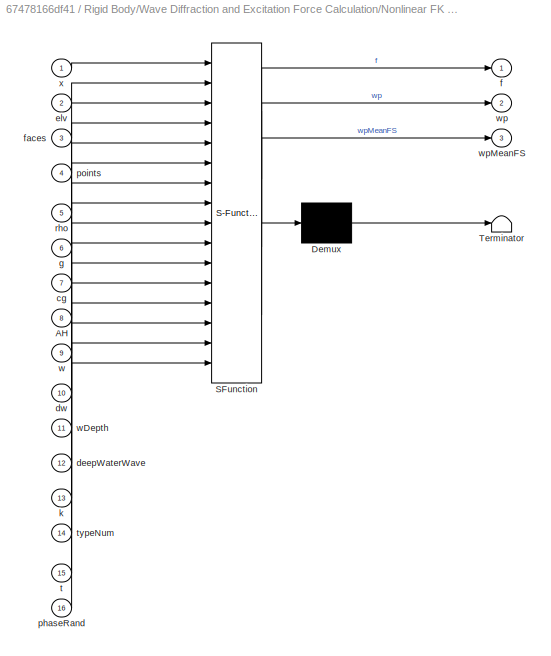
BLOCK [SubSystem] Rigid Body/Wave Diffraction and Excitation Force Calculation/Nonlinear FK Force Variant Subsystem/With Nonlinear FroudeKrylov Force/Diffarction and Excitation Forces
  ErrorFcn = Stateflow.Translate.translate
  PermitHierarchicalResolution = ExplicitOnly
  Ports = [16, 3]
  RequestExecContextInheritance = off
  SFBlockType = MATLAB Function
  TreatAsAtomicUnit = on
  Variant = off
BLOCK [Demux] Rigid Body/Wave Diffraction and Excitation Force Calculation/Nonlinear FK Force Variant Subsystem/With Nonlinear FroudeKrylov Force/Diffarction and Excitation Forces/ Demux 
  Outputs = 1
  Ports = [1, 1]
BLOCK [S-Function] Rigid Body/Wave Diffraction and Excitation Force Calculation/Nonlinear FK Force Variant Subsystem/With Nonlinear FroudeKrylov Force/Diffarction and Excitation Forces/ SFunction 
  EnableBusSupport = on
  FunctionName = sf_sfun
  PortCounts = [16 4]
  Ports = [16, 4]
  SFunctionDeploymentMode = off
  Tag = Stateflow S-Function ah_6dof_rev2 1
BLOCK [Terminator] Rigid Body/Wave Diffraction and Excitation Force Calculation/Nonlinear FK Force Variant Subsystem/With Nonlinear FroudeKrylov Force/Diffarction and Excitation Forces/ Terminator 
BLOCK [Inport] Rigid Body/Wave Diffraction and Excitation Force Calculation/Nonlinear FK Force Variant Subsystem/With Nonlinear FroudeKrylov Force/Diffarction and Excitation Forces/AH
  IconDisplay = Port number
  Port = 8
BLOCK [Inport] Rigid Body/Wave Diffraction and Excitation Force Calculation/Nonlinear FK Force Variant Subsystem/With Nonlinear FroudeKrylov Force/Diffarction and Excitation Forces/cg
  IconDisplay = Port number
  Port = 7
BLOCK [Inport] Rigid Body/Wave Diffraction and Excitation Force Calculation/Nonlinear FK Force Variant Subsystem/With Nonlinear FroudeKrylov Force/Diffarction and Excitation Forces/deepWaterWave
  IconDisplay = Port number
  Port = 12
BLOCK [Inport] Rigid Body/Wave Diffraction and Excitation Force Calculation/Nonlinear FK Force Variant Subsystem/With Nonlinear FroudeKrylov Force/Diffarction and Excitation Forces/dw
  IconDisplay = Port number
  Port = 10
BLOCK [Inport] Rigid Body/Wave Diffraction and Excitation Force Calculation/Nonlinear FK Force Variant Subsystem/With Nonlinear FroudeKrylov Force/Diffarction and Excitation Forces/elv
  IconDisplay = Port number
  Port = 2
BLOCK [Outport] Rigid Body/Wave Diffraction and Excitation Force Calculation/Nonlinear FK Force Variant Subsystem/With Nonlinear FroudeKrylov Force/Diffarction and Excitation Forces/f
  IconDisplay = Port number
BLOCK [Inport] Rigid Body/Wave Diffraction and Excitation Force Calculation/Nonlinear FK Force Variant Subsystem/With Nonlinear FroudeKrylov Force/Diffarction and Excitation Forces/faces
  IconDisplay = Port number
  Port = 3
BLOCK [Inport] Rigid Body/Wave Diffraction and Excitation Force Calculation/Nonlinear FK Force Variant Subsystem/With Nonlinear FroudeKrylov Force/Diffarction and Excitation Forces/g
  IconDisplay = Port number
  Port = 6
BLOCK [Inport] Rigid Body/Wave Diffraction and Excitation Force Calculation/Nonlinear FK Force Variant Subsystem/With Nonlinear FroudeKrylov Force/Diffarction and Excitation Forces/k
  IconDisplay = Port number
  Port = 13
BLOCK [Inport] Rigid Body/Wave Diffraction and Excitation Force Calculation/Nonlinear FK Force Variant Subsystem/With Nonlinear FroudeKrylov Force/Diffarction and Excitation Forces/phaseRand
  IconDisplay = Port number
  Port = 16
BLOCK [Inport] Rigid Body/Wave Diffraction and Excitation Force Calculation/Nonlinear FK Force Variant Subsystem/With Nonlinear FroudeKrylov Force/Diffarction and Excitation Forces/points
  IconDisplay = Port number
  Port = 4
BLOCK [Inport] Rigid Body/Wave Diffraction and Excitation Force Calculation/Nonlinear FK Force Variant Subsystem/With Nonlinear FroudeKrylov Force/Diffarction and Excitation Forces/rho
  IconDisplay = Port number
  Port = 5
BLOCK [Inport] Rigid Body/Wave Diffraction and Excitation Force Calculation/Nonlinear FK Force Variant Subsystem/With Nonlinear FroudeKrylov Force/Diffarction and Excitation Forces/t
  IconDisplay = Port number
  Port = 15
BLOCK [Inport] Rigid Body/Wave Diffraction and Excitation Force Calculation/Nonlinear FK Force Variant Subsystem/With Nonlinear FroudeKrylov Force/Diffarction and Excitation Forces/typeNum
  IconDisplay = Port number
  Port = 14
BLOCK [Inport] Rigid Body/Wave Diffraction and Excitation Force Calculation/Nonlinear FK Force Variant Subsystem/With Nonlinear FroudeKrylov Force/Diffarction and Excitation Forces/w
  IconDisplay = Port number
  Port = 9
BLOCK [Inport] Rigid Body/Wave Diffraction and Excitation Force Calculation/Nonlinear FK Force Variant Subsystem/With Nonlinear FroudeKrylov Force/Diffarction and Excitation Forces/wDepth
  IconDisplay = Port number
  Port = 11
BLOCK [Outport] Rigid Body/Wave Diffraction and Excitation Force Calculation/Nonlinear FK Force Variant Subsystem/With Nonlinear FroudeKrylov Force/Diffarction and Excitation Forces/wp
  IconDisplay = Port number
  Port = 2
BLOCK [Outport] Rigid Body/Wave Diffraction and Excitation Force Calculation/Nonlinear FK Force Variant Subsystem/With Nonlinear FroudeKrylov Force/Diffarction and Excitation Forces/wpMeanFS
  IconDisplay = Port number
  Port = 3
BLOCK [Inport] Rigid Body/Wave Diffraction and Excitation Force Calculation/Nonlinear FK Force Variant Subsystem/With Nonlinear FroudeKrylov Force/Diffarction and Excitation Forces/x
  IconDisplay = Port number
BLOCK [Constant] Rigid Body/Wave Diffraction and Excitation Force Calculation/Nonlinear FK Force Variant Subsystem/With Nonlinear FroudeKrylov Force/Gravity2
  Value = simu.g
BLOCK [Inport] Rigid Body/Wave Diffraction and Excitation Force Calculation/Nonlinear FK Force Variant Subsystem/With Nonlinear FroudeKrylov Force/In1
  IconDisplay = Port number
BLOCK [Inport] Rigid Body/Wave Diffraction and Excitation Force Calculation/Nonlinear FK Force Variant Subsystem/With Nonlinear FroudeKrylov Force/In2
  IconDisplay = Port number
  Port = 2
BLOCK [Inport] Rigid Body/Wave Diffraction and Excitation Force Calculation/Nonlinear FK Force Variant Subsystem/With Nonlinear FroudeKrylov Force/In3
  IconDisplay = Port number
  Port = 3
BLOCK [Mux] Rigid Body/Wave Diffraction and Excitation Force Calculation/Nonlinear FK Force Variant Subsystem/With Nonlinear FroudeKrylov Force/Mux
  DisplayOption = bar
  Inputs = 2
  Ports = [2, 1]
BLOCK [Outport] Rigid Body/Wave Diffraction and Excitation Force Calculation/Nonlinear FK Force Variant Subsystem/With Nonlinear FroudeKrylov Force/Out1
  IconDisplay = Port number
BLOCK [Constant] Rigid Body/Wave Diffraction and Excitation Force Calculation/Nonlinear FK Force Variant Subsystem/With Nonlinear FroudeKrylov Force/STL faces
  Value = body.bodyGeometry.face
BLOCK [Constant] Rigid Body/Wave Diffraction and Excitation Force Calculation/Nonlinear FK Force Variant Subsystem/With Nonlinear FroudeKrylov Force/STL verticies
  Value = body.bodyGeometry.vertex
BLOCK [ToWorkspace] Rigid Body/Wave Diffraction and Excitation Force Calculation/Nonlinear FK Force Variant Subsystem/With Nonlinear FroudeKrylov Force/To Workspace
  Decimation = round(simu.dtOut/simu.dt,0)
  MaxDataPoints = inf
  Ports = [1]
  SampleTime = -1
  SaveFormat = Structure With Time
  VariableName = body1_wavenonlinearpressure_out
BLOCK [ToWorkspace] Rigid Body/Wave Diffraction and Excitation Force Calculation/Nonlinear FK Force Variant Subsystem/With Nonlinear FroudeKrylov Force/To Workspace1
  Decimation = round(simu.dtOut/simu.dt,0)
  MaxDataPoints = inf
  Ports = [1]
  SampleTime = -1
  SaveFormat = Structure With Time
  VariableName = body1_wavelinearpressure_out
BLOCK [Constant] Rigid Body/Wave Diffraction and Excitation Force Calculation/Nonlinear FK Force Variant Subsystem/With Nonlinear FroudeKrylov Force/Water Density1
  Value = simu.rho
BLOCK [Product] Rigid Body/Wave Diffraction and Excitation Force Calculation/Product
  InputSameDT = off
  OutDataTypeStr = Inherit: Inherit via internal rule
  Ports = [2, 1]
  RndMeth = Floor
  SaturateOnIntegerOverflow = off
BLOCK [SubSystem] Rigid Body/Wave Diffraction and Excitation Force Calculation/Ramp Function
  Ports = [1, 1, 0, 0, 0, 0, 0, 1]
  RequestExecContextInheritance = off
  TreatAsAtomicUnit = on
  Variant = off
BLOCK [Constant] Rigid Body/Wave Diffraction and Excitation Force Calculation/Ramp Function Time1
  Value = simu.rampT
BLOCK [ActionPort] Rigid Body/Wave Diffraction and Excitation Force Calculation/Ramp Function/Action Port
  ActionType = then
BLOCK [Sum] Rigid Body/Wave Diffraction and Excitation Force Calculation/Ramp Function/Add
  InputSameDT = off
  OutDataTypeStr = Inherit: Inherit via internal rule
  Ports = [2, 1]
  SaturateOnIntegerOverflow = off
BLOCK [Sum] Rigid Body/Wave Diffraction and Excitation Force Calculation/Ramp Function/Add1
  InputSameDT = off
  OutDataTypeStr = Inherit: Inherit via internal rule
  Ports = [2, 1]
  SaturateOnIntegerOverflow = off
BLOCK [Constant] Rigid Body/Wave Diffraction and Excitation Force Calculation/Ramp Function/Constant
  Value = 1/2
BLOCK [Constant] Rigid Body/Wave Diffraction and Excitation Force Calculation/Ramp Function/Constant1
BLOCK [Constant] Rigid Body/Wave Diffraction and Excitation Force Calculation/Ramp Function/Constant2
  Value = 3*pi/2
BLOCK [Constant] Rigid Body/Wave Diffraction and Excitation Force Calculation/Ramp Function/Constant3
  Value = pi
BLOCK [Product] Rigid Body/Wave Diffraction and Excitation Force Calculation/Ramp Function/Divide
  InputSameDT = off
  Inputs = */
  OutDataTypeStr = Inherit: Inherit via internal rule
  Ports = [2, 1]
  RndMeth = Floor
  SaturateOnIntegerOverflow = off
BLOCK [Product] Rigid Body/Wave Diffraction and Excitation Force Calculation/Ramp Function/Product
  InputSameDT = off
  OutDataTypeStr = Inherit: Inherit via internal rule
  Ports = [2, 1]
  RndMeth = Floor
  SaturateOnIntegerOverflow = off
BLOCK [Product] Rigid Body/Wave Diffraction and Excitation Force Calculation/Ramp Function/Product1
  InputSameDT = off
  OutDataTypeStr = Inherit: Inherit via internal rule
  Ports = [2, 1]
  RndMeth = Floor
  SaturateOnIntegerOverflow = off
BLOCK [Outport] Rigid Body/Wave Diffraction and Excitation Force Calculation/Ramp Function/R
  IconDisplay = Port number
BLOCK [Constant] Rigid Body/Wave Diffraction and Excitation Force Calculation/Ramp Function/Ramp Time
  Value = simu.rampT
BLOCK [Sin] Rigid Body/Wave Diffraction and Excitation Force Calculation/Ramp Function/Sine Wave Function
  Ports = [1, 1]
  SampleTime = 0
  TimeSource = Use external signal
BLOCK [Inport] Rigid Body/Wave Diffraction and Excitation Force Calculation/Ramp Function/Time
  IconDisplay = Port number
BLOCK [Inport] Rigid Body/Wave Diffraction and Excitation Force Calculation/Time
  IconDisplay = Port number
BLOCK [Inport] Rigid Body/Wave Diffraction and Excitation Force Calculation/WaveElv
  IconDisplay = Port number
  Port = 3
BLOCK [SubSystem] Rigid Body/Wave Radiation Forces Calculation
  Ports = [2, 2]
  RequestExecContextInheritance = off
  Variant = off
BLOCK [Inport] Rigid Body/Wave Radiation Forces Calculation/Acceleration
  IconDisplay = Port number
  Port = 2
BLOCK [Sum] Rigid Body/Wave Radiation Forces Calculation/Add
  InputSameDT = off
  OutDataTypeStr = Inherit: Inherit via internal rule
  Ports = [2, 1]
  SaturateOnIntegerOverflow = off
BLOCK [Constant] Rigid Body/Wave Radiation Forces Calculation/Added Mass Matrix
  Value = body.hydroForce.fAddedMass(1:6,1+(body.bodyNumber-1)*6:6+(body.bodyNumber-1)*6)
BLOCK [Outport] Rigid Body/Wave Radiation Forces Calculation/F_AddedMass
  IconDisplay = Port number
  Port = 2
BLOCK [Outport] Rigid Body/Wave Radiation Forces Calculation/F_RadiationDamping
  IconDisplay = Port number
BLOCK [Product] Rigid Body/Wave Radiation Forces Calculation/Product
  InputSameDT = off
  Multiplication = Matrix(*)
  OutDataTypeStr = Inherit: Inherit via internal rule
  Ports = [2, 1]
  RndMeth = Floor
  SaturateOnIntegerOverflow = off
BLOCK [Product] Rigid Body/Wave Radiation Forces Calculation/Product1
  InputSameDT = off
  Multiplication = Matrix(*)
  OutDataTypeStr = Inherit: Inherit via internal rule
  Ports = [2, 1]
  RndMeth = Floor
  SaturateOnIntegerOverflow = off
BLOCK [Constant] Rigid Body/Wave Radiation Forces Calculation/Radiation Damping Matrix
  Value = body.hydroForce.fDamping(1:6,1+(body.bodyNumber-1)*6:6+(body.bodyNumber-1)*6)
BLOCK [SubSystem] Rigid Body/Wave Radiation Forces Calculation/SS and CI Variant Subsystem
  Ports = [1, 1]
  RequestExecContextInheritance = off
  Variant = on
BLOCK [SubSystem] Rigid Body/Wave Radiation Forces Calculation/SS and CI Variant Subsystem/Convolution Integral Calculation
  Ports = [1, 1]
  RequestExecContextInheritance = off
  Variant = off
  VariantControl = sv_convolution
BLOCK [SubSystem] Rigid Body/Wave Radiation Forces Calculation/SS and CI Variant Subsystem/Convolution Integral Calculation/Fluid Memory1
  ErrorFcn = Stateflow.Translate.translate
  PermitHierarchicalResolution = ExplicitOnly
  Ports = [4, 1]
  RequestExecContextInheritance = off
  SFBlockType = MATLAB Function
  TreatAsAtomicUnit = on
  Variant = off
BLOCK [Demux] Rigid Body/Wave Radiation Forces Calculation/SS and CI Variant Subsystem/Convolution Integral Calculation/Fluid Memory1/ Demux 
  Outputs = 1
  Ports = [1, 1]
BLOCK [S-Function] Rigid Body/Wave Radiation Forces Calculation/SS and CI Variant Subsystem/Convolution Integral Calculation/Fluid Memory1/ SFunction 
  EnableBusSupport = on
  FunctionName = sf_sfun
  PortCounts = [4 2]
  Ports = [4, 2]
  SFunctionDeploymentMode = off
  Tag = Stateflow S-Function ah_6dof_rev2 2
BLOCK [Terminator] Rigid Body/Wave Radiation Forces Calculation/SS and CI Variant Subsystem/Convolution Integral Calculation/Fluid Memory1/ Terminator 
BLOCK [Inport] Rigid Body/Wave Radiation Forces Calculation/SS and CI Variant Subsystem/Convolution Integral Calculation/Fluid Memory1/CTTime
  IconDisplay = Port number
  Port = 4
BLOCK [Outport] Rigid Body/Wave Radiation Forces Calculation/SS and CI Variant Subsystem/Convolution Integral Calculation/Fluid Memory1/F_FM
  IconDisplay = Port number
BLOCK [Inport] Rigid Body/Wave Radiation Forces Calculation/SS and CI Variant Subsystem/Convolution Integral Calculation/Fluid Memory1/IRKB
  IconDisplay = Port number
  Port = 3
BLOCK [Inport] Rigid Body/Wave Radiation Forces Calculation/SS and CI Variant Subsystem/Convolution Integral Calculation/Fluid Memory1/check
  IconDisplay = Port number
BLOCK [Inport] Rigid Body/Wave Radiation Forces Calculation/SS and CI Variant Subsystem/Convolution Integral Calculation/Fluid Memory1/v
  IconDisplay = Port number
  Port = 2
BLOCK [Constant] Rigid Body/Wave Radiation Forces Calculation/SS and CI Variant Subsystem/Convolution Integral Calculation/Impulse Response Function K1
  Value = body.hydroForce.irkb(:,1:6,1+(body.bodyNumber-1)*6:6+(body.bodyNumber-1)*6)
BLOCK [Inport] Rigid Body/Wave Radiation Forces Calculation/SS and CI Variant Subsystem/Convolution Integral Calculation/In1
  IconDisplay = Port number
BLOCK [Outport] Rigid Body/Wave Radiation Forces Calculation/SS and CI Variant Subsystem/Convolution Integral Calculation/Out1
  IconDisplay = Port number
BLOCK [Constant] Rigid Body/Wave Radiation Forces Calculation/SS and CI Variant Subsystem/Convolution Integral Calculation/Time (relative to the current time step)1
  Value = simu.CTTime
BLOCK [Constant] Rigid Body/Wave Radiation Forces Calculation/SS and CI Variant Subsystem/Convolution Integral Calculation/Wave Type1
  Value = waves.typeNum
BLOCK [Inport] Rigid Body/Wave Radiation Forces Calculation/SS and CI Variant Subsystem/In1
  IconDisplay = Port number
BLOCK [Outport] Rigid Body/Wave Radiation Forces Calculation/SS and CI Variant Subsystem/Out1
  IconDisplay = Port number
BLOCK [SubSystem] Rigid Body/Wave Radiation Forces Calculation/SS and CI Variant Subsystem/State-Space Calculation 
  Ports = [1, 1]
  RequestExecContextInheritance = off
  Variant = off
  VariantControl = sv_stateSpace
BLOCK [Inport] Rigid Body/Wave Radiation Forces Calculation/SS and CI Variant Subsystem/State-Space Calculation /In1
  IconDisplay = Port number
BLOCK [Outport] Rigid Body/Wave Radiation Forces Calculation/SS and CI Variant Subsystem/State-Space Calculation /Out1
  IconDisplay = Port number
BLOCK [StateSpace] Rigid Body/Wave Radiation Forces Calculation/SS and CI Variant Subsystem/State-Space Calculation /State-Space
  A = body.hydroForce.ssRadf.A
  B = body.hydroForce.ssRadf.B
  C = body.hydroForce.ssRadf.C
  D = body.hydroForce.ssRadf.D
  Ports = [1, 1]
  X0 = 0
BLOCK [TransportDelay] Rigid Body/Wave Radiation Forces Calculation/Transport Delay
  DelayTime = 10e-8
  Ports = [1, 1]
BLOCK [Inport] Rigid Body/Wave Radiation Forces Calculation/Velocity
  IconDisplay = Port number
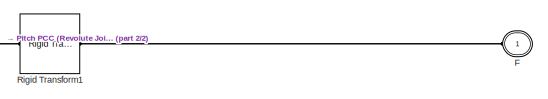
[diagram: Spherical PTO UD Torque  - part 1/2, top right region]
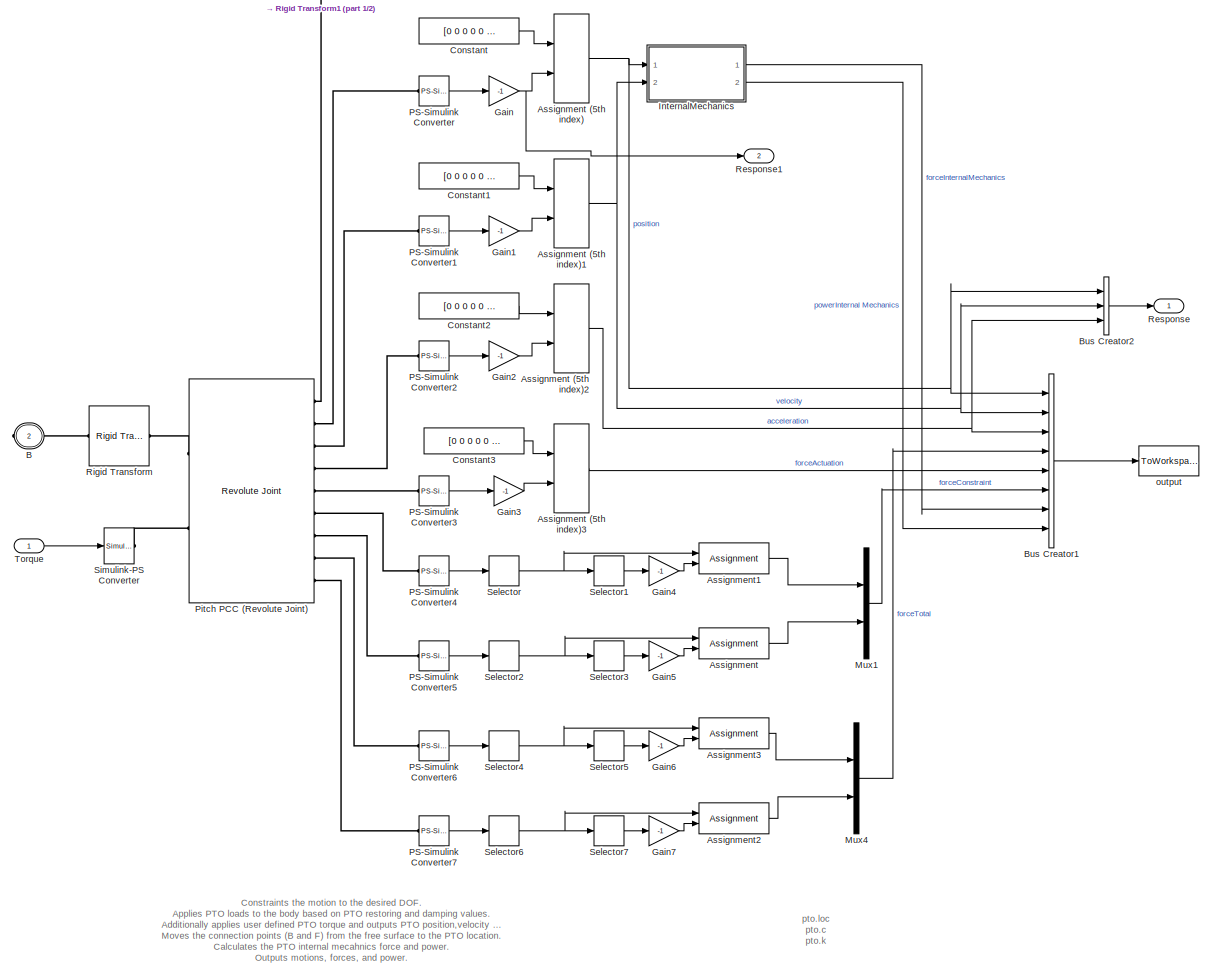
[diagram: Spherical PTO UD Torque  - part 2/2, most of the canvas]
BLOCK [SubSystem] Spherical PTO UD Torque 
  AncestorBlock = WECSim_Lib/PTOs/Rotational PTO UD Torque\n(Local RY)
  AttributesFormatString = %<pto>
  Ports = [1, 2, 0, 0, 0, 1, 1]
  RequestExecContextInheritance = off
  Variant = off
BLOCK [Assignment] Spherical PTO UD Torque /Assignment
  DiagnosticForDimensions = Warning
  IndexOptions = Index vector (dialog)
  Indices = 2
  OutputSizes = 1
  Ports = [2, 1]
BLOCK [Assignment] Spherical PTO UD Torque /Assignment (5th index) 
  IndexOptions = Index vector (dialog)
  Indices = 5
  OutputSizes = 1
  Ports = [2, 1]
BLOCK [Assignment] Spherical PTO UD Torque /Assignment (5th index)1
  IndexOptions = Index vector (dialog)
  Indices = 5
  OutputSizes = 1
  Ports = [2, 1]
BLOCK [Assignment] Spherical PTO UD Torque /Assignment (5th index)2
  IndexOptions = Index vector (dialog)
  Indices = 5
  OutputSizes = 1
  Ports = [2, 1]
BLOCK [Assignment] Spherical PTO UD Torque /Assignment (5th index)3
  IndexOptions = Index vector (dialog)
  Indices = 5
  OutputSizes = 1
  Ports = [2, 1]
BLOCK [Assignment] Spherical PTO UD Torque /Assignment1
  DiagnosticForDimensions = Warning
  IndexOptions = Index vector (dialog)
  Indices = 2
  OutputSizes = 1
  Ports = [2, 1]
BLOCK [Assignment] Spherical PTO UD Torque /Assignment2
  DiagnosticForDimensions = Warning
  IndexOptions = Index vector (dialog)
  Indices = 2
  OutputSizes = 1
  Ports = [2, 1]
BLOCK [Assignment] Spherical PTO UD Torque /Assignment3
  DiagnosticForDimensions = Warning
  IndexOptions = Index vector (dialog)
  Indices = 2
  OutputSizes = 1
  Ports = [2, 1]
BLOCK [PMIOPort] Spherical PTO UD Torque /B
  Port = 2
  Side = Right
BLOCK [BusCreator] Spherical PTO UD Torque /Bus Creator1
  DisplayOption = bar
  InheritFromInputs = on
  Inputs = 8
  Ports = [8, 1]
BLOCK [BusCreator] Spherical PTO UD Torque /Bus Creator2
  DisplayOption = bar
  InheritFromInputs = on
  Inputs = 3
  Ports = [3, 1]
BLOCK [Constant] Spherical PTO UD Torque /Constant
  Value = [0 0 0 0 0 0]
BLOCK [Constant] Spherical PTO UD Torque /Constant1
  Value = [0 0 0 0 0 0]
BLOCK [Constant] Spherical PTO UD Torque /Constant2
  Value = [0 0 0 0 0 0]
BLOCK [Constant] Spherical PTO UD Torque /Constant3
  Value = [0 0 0 0 0 0]
BLOCK [PMIOPort] Spherical PTO UD Torque /F
  Port = 1
  Side = Left
BLOCK [Gain] Spherical PTO UD Torque /Gain
  Gain = -1
  OutDataTypeStr = Inherit: Inherit via internal rule
  ParamDataTypeStr = Inherit: Inherit via internal rule
  SaturateOnIntegerOverflow = off
BLOCK [Gain] Spherical PTO UD Torque /Gain1
  Gain = -1
  OutDataTypeStr = Inherit: Inherit via internal rule
  ParamDataTypeStr = Inherit: Inherit via internal rule
  SaturateOnIntegerOverflow = off
BLOCK [Gain] Spherical PTO UD Torque /Gain2
  Gain = -1
  OutDataTypeStr = Inherit: Inherit via internal rule
  ParamDataTypeStr = Inherit: Inherit via internal rule
  SaturateOnIntegerOverflow = off
BLOCK [Gain] Spherical PTO UD Torque /Gain3
  Gain = -1
  OutDataTypeStr = Inherit: Inherit via internal rule
  ParamDataTypeStr = Inherit: Inherit via internal rule
  SaturateOnIntegerOverflow = off
BLOCK [Gain] Spherical PTO UD Torque /Gain4
  Gain = -1
  OutDataTypeStr = Inherit: Inherit via internal rule
  ParamDataTypeStr = Inherit: Inherit via internal rule
  SaturateOnIntegerOverflow = off
BLOCK [Gain] Spherical PTO UD Torque /Gain5
  Gain = -1
  OutDataTypeStr = Inherit: Inherit via internal rule
  ParamDataTypeStr = Inherit: Inherit via internal rule
  SaturateOnIntegerOverflow = off
BLOCK [Gain] Spherical PTO UD Torque /Gain6
  Gain = -1
  OutDataTypeStr = Inherit: Inherit via internal rule
  ParamDataTypeStr = Inherit: Inherit via internal rule
  SaturateOnIntegerOverflow = off
BLOCK [Gain] Spherical PTO UD Torque /Gain7
  Gain = -1
  OutDataTypeStr = Inherit: Inherit via internal rule
  ParamDataTypeStr = Inherit: Inherit via internal rule
  SaturateOnIntegerOverflow = off
BLOCK [SubSystem] Spherical PTO UD Torque /InternalMechanics
  Ports = [2, 2]
  RequestExecContextInheritance = off
  Variant = off
BLOCK [Sum] Spherical PTO UD Torque /InternalMechanics/Add
  InputSameDT = off
  Inputs = --
  OutDataTypeStr = Inherit: Inherit via internal rule
  Ports = [2, 1]
  SaturateOnIntegerOverflow = off
BLOCK [Outport] Spherical PTO UD Torque /InternalMechanics/Force
  IconDisplay = Port number
BLOCK [Math] Spherical PTO UD Torque /InternalMechanics/Math Function
  Operator = square
  Ports = [1, 1]
BLOCK [Constant] Spherical PTO UD Torque /InternalMechanics/PCC Damping Coefficient
  Value = pto.c
BLOCK [Constant] Spherical PTO UD Torque /InternalMechanics/PCC Stiffness Coefficient
  Value = pto.k
BLOCK [Inport] Spherical PTO UD Torque /InternalMechanics/Position
  IconDisplay = Port number
BLOCK [Outport] Spherical PTO UD Torque /InternalMechanics/Power
  IconDisplay = Port number
  Port = 2
BLOCK [Product] Spherical PTO UD Torque /InternalMechanics/Product
  InputSameDT = off
  Inputs = **
  OutDataTypeStr = Inherit: Inherit via internal rule
  Ports = [2, 1]
  RndMeth = Floor
  SaturateOnIntegerOverflow = off
BLOCK [Product] Spherical PTO UD Torque /InternalMechanics/Product1
  InputSameDT = off
  Inputs = **
  OutDataTypeStr = Inherit: Inherit via internal rule
  Ports = [2, 1]
  RndMeth = Floor
  SaturateOnIntegerOverflow = off
BLOCK [Product] Spherical PTO UD Torque /InternalMechanics/Product2
  InputSameDT = off
  Inputs = **
  OutDataTypeStr = Inherit: Inherit via internal rule
  Ports = [2, 1]
  RndMeth = Floor
  SaturateOnIntegerOverflow = off
BLOCK [Inport] Spherical PTO UD Torque /InternalMechanics/Velocity
  IconDisplay = Port number
  Port = 2
BLOCK [Mux] Spherical PTO UD Torque /Mux1
  DisplayOption = bar
  Inputs = 2
  Ports = [2, 1]
BLOCK [Mux] Spherical PTO UD Torque /Mux4
  DisplayOption = bar
  Inputs = 2
  Ports = [2, 1]
BLOCK [Reference] Spherical PTO UD Torque /PS-Simulink Converter  REF=nesl_utility/PS-Simulink
Converter
  Ports = [0, 1, 0, 0, 0, 1]
  SourceBlock = nesl_utility/PS-Simulink\nConverter
  SourceType = PS-Simulink\nConverter
BLOCK [Reference] Spherical PTO UD Torque /PS-Simulink Converter1  REF=nesl_utility/PS-Simulink
Converter
  Ports = [0, 1, 0, 0, 0, 1]
  SourceBlock = nesl_utility/PS-Simulink\nConverter
  SourceType = PS-Simulink\nConverter
BLOCK [Reference] Spherical PTO UD Torque /PS-Simulink Converter2  REF=nesl_utility/PS-Simulink
Converter
  Ports = [0, 1, 0, 0, 0, 1]
  SourceBlock = nesl_utility/PS-Simulink\nConverter
  SourceType = PS-Simulink\nConverter
BLOCK [Reference] Spherical PTO UD Torque /PS-Simulink Converter3  REF=nesl_utility/PS-Simulink
Converter
  Ports = [0, 1, 0, 0, 0, 1]
  SourceBlock = nesl_utility/PS-Simulink\nConverter
  SourceType = PS-Simulink\nConverter
BLOCK [Reference] Spherical PTO UD Torque /PS-Simulink Converter4  REF=nesl_utility/PS-Simulink
Converter
  Ports = [0, 1, 0, 0, 0, 1]
  SourceBlock = nesl_utility/PS-Simulink\nConverter
  SourceType = PS-Simulink\nConverter
BLOCK [Reference] Spherical PTO UD Torque /PS-Simulink Converter5  REF=nesl_utility/PS-Simulink
Converter
  Ports = [0, 1, 0, 0, 0, 1]
  SourceBlock = nesl_utility/PS-Simulink\nConverter
  SourceType = PS-Simulink\nConverter
BLOCK [Reference] Spherical PTO UD Torque /PS-Simulink Converter6  REF=nesl_utility/PS-Simulink
Converter
  Ports = [0, 1, 0, 0, 0, 1]
  SourceBlock = nesl_utility/PS-Simulink\nConverter
  SourceType = PS-Simulink\nConverter
BLOCK [Reference] Spherical PTO UD Torque /PS-Simulink Converter7  REF=nesl_utility/PS-Simulink
Converter
  Ports = [0, 1, 0, 0, 0, 1]
  SourceBlock = nesl_utility/PS-Simulink\nConverter
  SourceType = PS-Simulink\nConverter
BLOCK [Reference] Spherical PTO UD Torque /Pitch PCC (Revolute Joint)  REF=sm_lib/Joints/Revolute Joint
  Ports = [0, 0, 0, 0, 0, 2, 9]
  SourceBlock = sm_lib/Joints/Revolute Joint
  SourceType = Revolute Joint
BLOCK [Outport] Spherical PTO UD Torque /Response
  IconDisplay = Port number
BLOCK [Outport] Spherical PTO UD Torque /Response1
  IconDisplay = Port number
  Port = 2
BLOCK [Reference] Spherical PTO UD Torque /Rigid Transform  REF=sm_lib/Frames and
Transforms/Rigid
Transform
  Ports = [0, 0, 0, 0, 0, 1, 1]
  SourceBlock = sm_lib/Frames and\nTransforms/Rigid\nTransform
  SourceType = Rigid\nTransform
BLOCK [Reference] Spherical PTO UD Torque /Rigid Transform1  REF=sm_lib/Frames and
Transforms/Rigid
Transform
  Ports = [0, 0, 0, 0, 0, 1, 1]
  SourceBlock = sm_lib/Frames and\nTransforms/Rigid\nTransform
  SourceType = Rigid\nTransform
BLOCK [Selector] Spherical PTO UD Torque /Selector
  IndexOptions = Index vector (dialog)
  Indices = [1 3 2]
  InputPortWidth = 3
  OutputSizes = 1
  Ports = [1, 1]
BLOCK [Selector] Spherical PTO UD Torque /Selector1
  IndexOptions = Index vector (dialog)
  Indices = [2]
  InputPortWidth = 3
  OutputSizes = 1
  Ports = [1, 1]
BLOCK [Selector] Spherical PTO UD Torque /Selector2
  IndexOptions = Index vector (dialog)
  Indices = [1 3 2]
  InputPortWidth = 3
  OutputSizes = 1
  Ports = [1, 1]
BLOCK [Selector] Spherical PTO UD Torque /Selector3
  IndexOptions = Index vector (dialog)
  Indices = [2]
  InputPortWidth = 3
  OutputSizes = 1
  Ports = [1, 1]
BLOCK [Selector] Spherical PTO UD Torque /Selector4
  IndexOptions = Index vector (dialog)
  Indices = [1 3 2]
  InputPortWidth = 3
  OutputSizes = 1
  Ports = [1, 1]
BLOCK [Selector] Spherical PTO UD Torque /Selector5
  IndexOptions = Index vector (dialog)
  Indices = [2]
  InputPortWidth = 3
  OutputSizes = 1
  Ports = [1, 1]
BLOCK [Selector] Spherical PTO UD Torque /Selector6
  IndexOptions = Index vector (dialog)
  Indices = [1 3 2]
  InputPortWidth = 3
  OutputSizes = 1
  Ports = [1, 1]
BLOCK [Selector] Spherical PTO UD Torque /Selector7
  IndexOptions = Index vector (dialog)
  Indices = [2]
  InputPortWidth = 3
  OutputSizes = 1
  Ports = [1, 1]
BLOCK [Reference] Spherical PTO UD Torque /Simulink-PS Converter  REF=nesl_utility/Simulink-PS
Converter
  Ports = [1, 0, 0, 0, 0, 0, 1]
  SourceBlock = nesl_utility/Simulink-PS\nConverter
  SourceType = Simulink-PS\nConverter
BLOCK [Inport] Spherical PTO UD Torque /Torque
  IconDisplay = Port number
BLOCK [ToWorkspace] Spherical PTO UD Torque /output
  Decimation = round(simu.dtOut/simu.dt,0)
  FixptAsFi = on
  MaxDataPoints = inf
  Ports = [1]
  SampleTime = -1
  Save2DSignal = 3-D array (concatenate along third dimension)
  SaveFormat = Structure With Time
  VariableName = pto2_out
BLOCK [Reference] Translational PTO (Local Z)  REF=WECSim_Lib/PTOs/Translational PTO 
(Local Z)
  AttributesFormatString = %<pto>
  Ports = [0, 0, 0, 0, 0, 1, 1]
  SourceBlock = WECSim_Lib/PTOs/Translational PTO \n(Local Z)
  SourceType = PTO
BLOCK [SubSystem] Universal
  AncestorBlock = WECSim_Lib/Constraints/Floating
  AttributesFormatString = %<constraint>
  Ports = [0, 0, 0, 0, 0, 1, 1]
  RequestExecContextInheritance = off
  Variant = off
BLOCK [Assignment] Universal/Assignment
  DiagnosticForDimensions = Warning
  IndexOptions = Index vector (dialog)
  Indices = 2
  OutputSizes = 1
  Ports = [2, 1]
BLOCK [Assignment] Universal/Assignment1
  DiagnosticForDimensions = Warning
  IndexOptions = Index vector (dialog)
  Indices = 2
  OutputSizes = 1
  Ports = [2, 1]
BLOCK [PMIOPort] Universal/B
  Port = 1
  Side = Left
BLOCK [PMIOPort] Universal/F
  Port = 2
  Side = Right
BLOCK [Gain] Universal/Gain
  Gain = -1
  OutDataTypeStr = Inherit: Inherit via internal rule
  ParamDataTypeStr = Inherit: Inherit via internal rule
  SaturateOnIntegerOverflow = off
BLOCK [Gain] Universal/Gain1
  Gain = -1
  OutDataTypeStr = Inherit: Inherit via internal rule
  ParamDataTypeStr = Inherit: Inherit via internal rule
  SaturateOnIntegerOverflow = off
BLOCK [Mux] Universal/Mux
  DisplayOption = bar
  Inputs = 2
  Ports = [2, 1]
BLOCK [Reference] Universal/PS-Simulink Converter  REF=nesl_utility/PS-Simulink
Converter
  Ports = [0, 1, 0, 0, 0, 1]
  SourceBlock = nesl_utility/PS-Simulink\nConverter
  SourceType = PS-Simulink\nConverter
BLOCK [Reference] Universal/PS-Simulink Converter1  REF=nesl_utility/PS-Simulink
Converter
  Ports = [0, 1, 0, 0, 0, 1]
  SourceBlock = nesl_utility/PS-Simulink\nConverter
  SourceType = PS-Simulink\nConverter
BLOCK [Reference] Universal/Planar Joint  REF=sm_lib/Joints/Planar Joint
  Ports = [0, 0, 0, 0, 0, 1, 3]
  SourceBlock = sm_lib/Joints/Planar Joint
  SourceType = Planar Joint
BLOCK [Reference] Universal/Rigid Transform  REF=sm_lib/Frames and
Transforms/Rigid
Transform
  Ports = [0, 0, 0, 0, 0, 1, 1]
  SourceBlock = sm_lib/Frames and\nTransforms/Rigid\nTransform
  SourceType = Rigid\nTransform
BLOCK [Reference] Universal/Rigid Transform1  REF=sm_lib/Frames and
Transforms/Rigid
Transform
  Ports = [0, 0, 0, 0, 0, 1, 1]
  SourceBlock = sm_lib/Frames and\nTransforms/Rigid\nTransform
  SourceType = Rigid\nTransform
BLOCK [Selector] Universal/Selector1
  IndexOptions = Index vector (dialog)
  Indices = [1 3 2]
  InputPortWidth = 3
  OutputSizes = 1
  Ports = [1, 1]
BLOCK [Selector] Universal/Selector3
  IndexOptions = Index vector (dialog)
  Indices = [1 3 2]
  InputPortWidth = 3
  OutputSizes = 1
  Ports = [1, 1]
BLOCK [Selector] Universal/Selector4
  IndexOptions = Index vector (dialog)
  Indices = [2]
  InputPortWidth = 3
  OutputSizes = 1
  Ports = [1, 1]
BLOCK [Selector] Universal/Selector5
  IndexOptions = Index vector (dialog)
  Indices = [2]
  InputPortWidth = 3
  OutputSizes = 1
  Ports = [1, 1]
BLOCK [Reference] Universal/Universal Joint  REF=sm_lib/Joints/Universal
Joint
  Ports = [0, 0, 0, 0, 0, 1, 3]
  SourceBlock = sm_lib/Joints/Universal\nJoint
  SourceType = Universal\nJoint
BLOCK [ToWorkspace] Universal/output
  Decimation = round(simu.dtOut/simu.dt,0)
  FixptAsFi = on
  MaxDataPoints = inf
  Ports = [1]
  SampleTime = -1
  Save2DSignal = 3-D array (concatenate along third dimension)
  SaveFormat = Structure With Time
  VariableName = constraint1_out
ANNOTATION Rigid Body: Calculates forces at the cg and applies it to the structure at the cg. Output results.
ANNOTATION Rigid Body: body.hydroData.properties.name used in mask
ANNOTATION Rigid Body/Additional Linear Damping Force Calculation: Calculates the additional linear damping force (if any) Additional Linear Damping Force = damping matrix (diagonal) * velocity vector = C * v
ANNOTATION Rigid Body/Hydrostatic Restoring Force Calculation/Linear and Nonlinear Restoring Force Variant Subsystem: 1) Add Subsystem or Model blocks as valid variant choices. 2) You cannot connect blocks at this level. At simulation, connectivity is automatically determined, based on the active variant and port name matching.
ANNOTATION Rigid Body/Hydrostatic Restoring Force Calculation/Linear and Nonlinear Restoring Force Variant Subsystem/Linear Hydrostatic Restoring Force : Calculates the net buoyancy and linear restoring forces Net Buoyancy Force in z-direction = gravity force - buoyancy force = m*g - rho*g*Vol Linear Restoring Force = linear restoring coefficient matrix * displacement about cg vector = k * x_cg For a floating body, the net boyancy force = 0.
ANNOTATION Rigid Body/Mooring Force Calculation (Map): Calculates the Mooring Force Mooring force = Kmooring matrix * displacement vector (relative to cg) + Cmooring matrix * velocity vector - PreTension vector F_Mooring = x_cg * Km + v * Cm - T
ANNOTATION Rigid Body/Nonlinear Wave Elevation/Linear or Instantaneous Free Surface: 1) Add Subsystem or Model blocks as valid variant choices. 2) You cannot connect blocks at this level. At simulation, connectivity is automatically determined, based on the active variant and port name matching.
ANNOTATION Rigid Body/Structure: SimMechanics Model Body: Consists of body properties (inertia and vizualisation) defined at the CG, and a connection point at (0,0,0), the free surface. Forces:: Total forces calculated by WEC-Sim are applied at the Body CG. Other forces (constraints and PTOs) can be applied outside of this block, though the connection point. Motion Sensor: Measures the displacement, velocity, and acceleration of ...<+40ch>
ANNOTATION Rigid Body/Structure: body.mass body.momOfInertia body.geometryFile (set through Rigid Body mask) body.hydroData.properties.cg body.initDisp.initAngularDispAxis body.initDisp.initAngularDispAngle body.initDisp.initLinDisp
ANNOTATION Rigid Body/Structure/Motion Sensor: Measures the position, velocity, and acceleration of the follower (F) frame relative to the base (B) frame. Ouputs a bus of 3 signals, each signal is a vector length 6.
ANNOTATION Rigid Body/Viscous Damping Force Calculation: Calculates Viscous Drag (Quadratic) Force Viscous Drag Force = 1/2 * drag coefficient * water density * characteristic area * velocity squared (signed) = 0.5 * cd * rho *A * v * |v|
ANNOTATION Rigid Body/Wave Diffraction and Excitation Force Calculation: Calculates the excitation force, F_Excitation, given by F_Excitation = R * F_wave. There are two cases for Calculating the Ramp function, R: 1. simulation Time is less than Ramp Time: Apply ramp function 2. Simulation time is larger than Ramp Time: Do not apply ramp function (R=1) Similarly there are two cases for the wave force, F_wave: Regular and Irregular waves. Notes: Output dimension set to ...<+52ch>
ANNOTATION Rigid Body/Wave Diffraction and Excitation Force Calculation/Linear Wave Excitation Force Variant Subsystem: 1) Add Subsystem or Model blocks as valid variant choices. 2) You cannot connect blocks at this level. At simulation, connectivity is automatically determined, based on the active variant and port name matching.
ANNOTATION Rigid Body/Wave Diffraction and Excitation Force Calculation/Linear Wave Excitation Force Variant Subsystem/Irregular Wave Excitation Force: Calculates the wave force, F_wave, for the case of Irregular Waves. F_wave = sum( F_wave(i)) where i = each frequency bin.
ANNOTATION Rigid Body/Wave Diffraction and Excitation Force Calculation/Linear Wave Excitation Force Variant Subsystem/Irregular Wave Excitation Force/For Each Subsystem: Calculates the Irregular wave force component for each individual frequency bin. F_wave(i) = cos(w(i) * t + phi(i)) * Re{Fext(i)} * sqrt(S(i) * dw) - sin(w(i) * t + phi(i)) * Im{Fext(i)} * sqrt(S(i) * dw)
ANNOTATION Rigid Body/Wave Diffraction and Excitation Force Calculation/Linear Wave Excitation Force Variant Subsystem/Regular Wave Excitation Force: Calculates the wave force, F_wave, for the case of Regular Waves. F_wave = A * cos(w * t) * Re{Fext} - A * sin(w * t) * Im{Fext}
ANNOTATION Rigid Body/Wave Diffraction and Excitation Force Calculation/Linear Wave Excitation Force Variant Subsystem/User Defined Wave Excitation Force: Calculates the wave force, F_wave, for the case of User Defined Waves. F_wave = convulation calculation [1x6]
ANNOTATION Rigid Body/Wave Diffraction and Excitation Force Calculation/No Ramp Function: No ramp function applied. R = 1 Note: Output port initial value also set to 1,
ANNOTATION Rigid Body/Wave Diffraction and Excitation Force Calculation/Nonlinear FK Force Variant Subsystem: 1) Add Subsystem or Model blocks as valid variant choices. 2) You cannot connect blocks at this level. At simulation, connectivity is automatically determined, based on the active variant and port name matching.
ANNOTATION Rigid Body/Wave Diffraction and Excitation Force Calculation/Ramp Function: Calculates the ramp function, R, given by R = (1 / 2) * (1 + sin( (pi / t_ramp) * t + ((3 / 2) * pi) ) ).
ANNOTATION Rigid Body/Wave Radiation Forces Calculation: Calculates the wave radiation forces: Added Mass Force = added mass matrix * acceleration vector Single frequency radiation damping force = radiation damping matrix * acceleration vector Convolution Integral The code can run in one of two modes: Convolution integral: the radiation damping matrix is set to zero, and the infinite frequency added mass is used. Single Frequency: The impulse response f...<+193ch>
ANNOTATION Rigid Body/Wave Radiation Forces Calculation/SS and CI Variant Subsystem: 1) Add Subsystem or Model blocks as valid variant choices. 2) You cannot connect blocks at this level. At simulation, connectivity is automatically determined, based on the active variant and port name matching.
ANNOTATION Rigid Body/Wave Radiation Forces Calculation/SS and CI Variant Subsystem/State-Space Calculation : Calculates the net buoyancy and linear restoring forces Net Buoyancy Force in z-direction = gravity force - buoyancy force = m*g - rho*g*Vol Linear Restoring Force = linear restoring coefficient matrix * displacement about cg vector = k * x_cg For a floating body, the net boyancy force = 0.
ANNOTATION Spherical PTO UD Torque : Constraints the motion to the desired DOF. Applies PTO loads to the body based on PTO restoring and damping values. Additionally applies user defined PTO torque and outputs PTO position,velocity and acceleration. Moves the connection points (B and F) from the free surface to the PTO location. Calculates the PTO internal mecahnics force and power. Outputs motions, forces, and power.
ANNOTATION Spherical PTO UD Torque : pto.loc pto.c pto.k
ANNOTATION Spherical PTO UD Torque /InternalMechanics: Calculate PTO force and power. F_pto = k*x + c*v, where F_pto is the force the PTO applies to the body (at the PTO location), x and v are the joint position and velocity. The power extracted is P = c * v^2
ANNOTATION Universal: Constraints the motion to the desired DOF. Moves the connection points (B and F) from the free surface to the PTO location. Outputs forces and motions.
ANNOTATION Universal: constraint.loc constraint.c constraint.k constraint.name used in mask
LINE Rigid Body:1 -> Check- Excitation Force:1
LINE Rigid Body:2 -> Check- Restoring Force4:1
LINE Rigid Body:3 -> Check- Restoring Force7:1
PLINE Global Reference Frame:RConn1 -- Universal:LConn1
PLINE Rigid Body:RConn1 -- Spherical PTO UD Torque :LConn1
PLINE Spherical PTO UD Torque :RConn1 -- Translational PTO (Local Z):LConn1
PLINE Translational PTO (Local Z):RConn1 -- Universal:RConn1
CHART Rigid Body/Wave Diffraction and Excitation Force Calculation/Nonlinear FK Force Variant Subsystem/With Nonlinear FroudeKrylov Force/Diffarction and Excitation Forces states=1 transitions=1
  STATE_LABEL 'eML_blk_kernel()'
  STATE_LABEL 'SCRIPT:\nfunction [f, wp, wpMeanFS]  = nonFKForce(x,elv,faces,points,rho,g,cg,AH,w,dw,wDepth,deepWaterWave,k,typeNum,t,phaseRand)\n% Function to calculate buoyancy force and moment on a triangulated surface\n% NOTE: This function assumes that the STL file is imported with its CG at 0,0,0\n\n% Compute new tri coords after cog rotation and translation\npointsMeanFS = offsetXYZ(points,cg);\ncenterMeanFS = t...<+3608ch>'
CHART Rigid Body/Wave Radiation Forces Calculation/SS and CI Variant Subsystem/Convolution Integral Calculation/Fluid Memory1 states=1 transitions=1
  STATE_LABEL 'eML_blk_kernel()'
  STATE_LABEL 'SCRIPT:\nfunction F_FM = ConvolutionalIntegral(check,v,IRKB,CTTime)\n\n%define persistent variables\npersistent velocity;\npersistent kkk\nlen = length(CTTime);\n\nif check==10\n    tmpT = zeros(6,1);\nelse\n    if isempty(velocity)\n        velocity = zeros(6,len);\n        kkk=0;\n    else\n        kkk=kkk+1;\n        int2=abs(kkk-floor(kkk/5)*5-1);\n        if int2<0.00000001\n            velocity(:,2:end) = vel...<+333ch>'
CHART Rigid Body/Nonlinear Wave Elevation/Linear or Instantaneous Free Surface/Instantaneous Water Free Surface  /Instantaneous FS states=1 transitions=1
  STATE_LABEL 'eML_blk_kernel()'
  STATE_LABEL 'SCRIPT:\nfunction f  = waveElevation(x,faces,points,cg,AH,w,dw,k,typeNum,t,rampT,phaseRand)\n% Function to calculate buoyancy force and moment on a triangulated surface\n% NOTE: This function assumes that the STL file is imported with its CG at 0,0,0\n\n% Compute new tri coords after cog rotation and translation\npoints = rotateXYZ(points,[1 0 0],x(4));\npoints = rotateXYZ(points,[0 1 0],x(5));\npoints = ...<+2169ch>'
CHART Rigid Body/Hydrostatic Restoring Force Calculation/Linear and Nonlinear Restoring Force Variant Subsystem/Nonlinear Hydrostatic Restoring Force/Diffarction and Excitation Forces1 states=1 transitions=1
  STATE_LABEL 'eML_blk_kernel()'
  STATE_LABEL 'SCRIPT:\nfunction [f,av,p]  = nonLinearBuoyancy(x,elv,faces,points,rho,g,cg)\n% Function to calculate buoyancy force and moment on a triangulated surface\n% NOTE: This function assumes that the STL file is imported with its CG at 0,0,0\n\n% Compute new tri coords after cog rotation and translation\npoints = rotateXYZ(points,[1 0 0],x(4));\npoints = rotateXYZ(points,[0 1 0],x(5));\npoints = rotateXYZ(point...<+2811ch>'
CHART Rigid Body/Structure/Motion Sensor/Angle states=1 transitions=1
  STATE_LABEL 'eML_blk_kernel()'
  STATE_LABEL 'SCRIPT:\nfunction E  = EulerAngle(Q)\n%#codegen\nE=zeros(3,1);\nE(1) = atan2( (2*(Q(1)*Q(2)+Q(3)*Q(4))), (1-2* (Q(2)^2+Q(3)^2) ) );\nE(2) = asin( 2* (Q(1)*Q(3) - Q(4)*Q(2)));\nE(3) = atan2( (2*(Q(1)*Q(4)+Q(2)*Q(3))), (1-2* (Q(3)^2+Q(4)^2) ) );'
